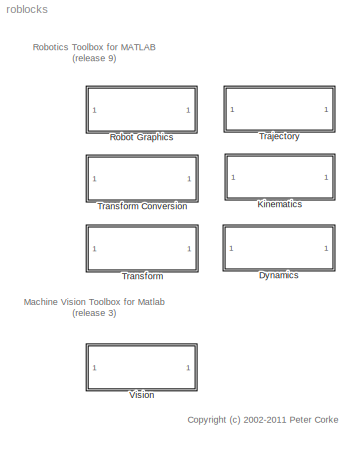
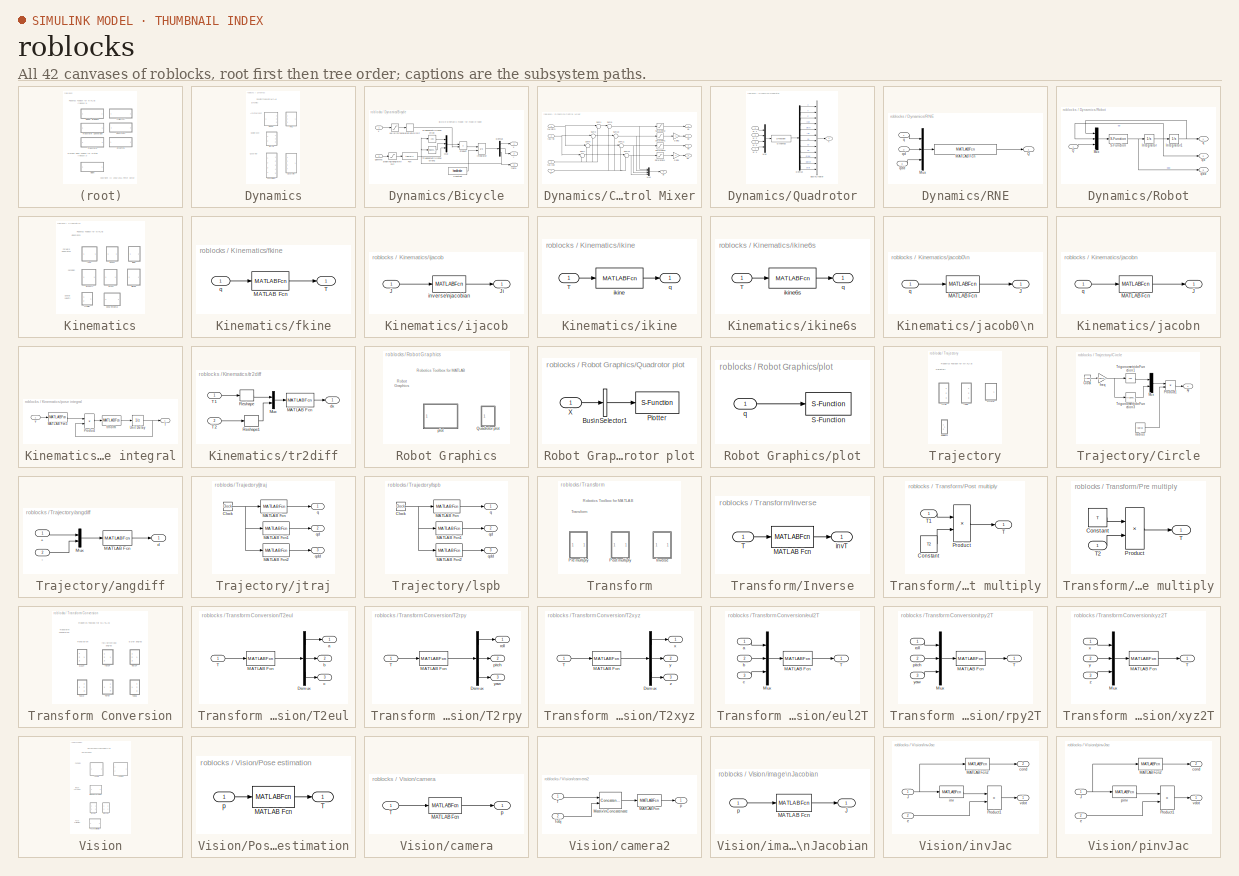
[diagram: thumbnail index - all 42 canvases of the model, root first then tree order]
MODEL roblocks
KIND library
BLOCK [SubSystem] Dynamics
  FunctionWithSeparateData = off
  MaskDisplay = color('darkBlue')\ndisp('Dynamics')
  MaskHideContents = off
  MaskIconFrame = on
  MaskIconOpaque = on
  MaskIconRotate = none
  MaskIconUnits = pixels
  MaskPortRotate = default
  MinAlgLoopOccurrences = off
  Opaque = off
  Ports = []
  PropExecContextOutsideSubsystem = off
  RTWSystemCode = Auto
  RequestExecContextInheritance = off
  SID = 5
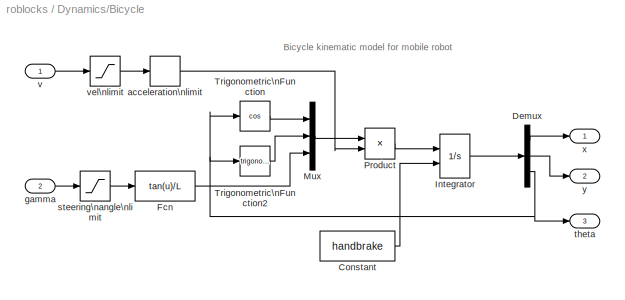
BLOCK [SubSystem] Dynamics/Bicycle
  FunctionWithSeparateData = off
  MaskCallbackString = |||||
  MaskDescription = Kino-dynamic model of bicycle vehicle
  MaskEnableString = on,on,on,on,on,on
  MaskHelp = Kino-dynamic model of bicycle vehicle, also known as Ackermann vehicle\nmodel.\n\n<b>Parameters::</b>\n \nAcceleration (1x1)   Vehicle acceleration limit [m/s2]\nVelocity limit (1x1)  Vehicle speed limit [m/s]\nSteering limits (1x1) Steering angle limit [rad]\nInitial state (1x3) Initial state (x, y, theta)\nHandbrake (1x1) Vehicle cannot move if non-zero\n \n<b>Inputs::</b>\n \nv (1x1) velocity d...<+336ch>
  MaskHideContents = off
  MaskIconFrame = on
  MaskIconOpaque = on
  MaskIconRotate = none
  MaskIconUnits = autoscale
  MaskPortRotate = default
  MaskPromptString = Acceleration|Velocity limit|Steering limits|Wheel base|Initial state (x, y, theta)|Handbrake
  MaskStyleString = edit,edit,edit,edit,edit,edit
  MaskToolTipString = on,on,on,on,on,on
  MaskTunableValueString = on,on,on,on,on,on
  MaskValueString = 1|1|2|0|[0, 0, 0]|0
  MaskVariables = accel=@1;vlim=@2;alim=@3;L=@4;x0=@5;handbrake=@6;
  MaskVisibilityString = on,on,on,on,on,on
  MinAlgLoopOccurrences = off
  Opaque = off
  Ports = [2, 3]
  PropExecContextOutsideSubsystem = off
  RTWSystemCode = Auto
  RequestExecContextInheritance = off
  SID = 51
BLOCK [Constant] Dynamics/Bicycle/Constant
  SID = 51:222
  Value = handbrake
BLOCK [Demux] Dynamics/Bicycle/Demux
  DisplayOption = bar
  Outputs = 3
  Ports = [1, 3]
  SID = 51:4
BLOCK [Fcn] Dynamics/Bicycle/Fcn
  Expr = tan(u)/L
  SID = 51:226
BLOCK [Integrator] Dynamics/Bicycle/Integrator
  ExternalReset = level
  InitialCondition = x0
  Ports = [2, 1]
  SID = 51:227
BLOCK [Mux] Dynamics/Bicycle/Mux
  DisplayOption = bar
  Inputs = 3
  Ports = [3, 1]
  SID = 51:6
BLOCK [Product] Dynamics/Bicycle/Product
  InputSameDT = off
  OutDataTypeStr = Inherit: Inherit via internal rule
  Ports = [2, 1]
  SID = 51:7
  SaturateOnIntegerOverflow = off
BLOCK [Trigonometry] Dynamics/Bicycle/Trigonometric\nFunction
  Operator = cos
  Ports = [1, 1]
  SID = 51:8
BLOCK [Trigonometry] Dynamics/Bicycle/Trigonometric\nFunction2
  Ports = [1, 1]
  SID = 51:9
BLOCK [RateLimiter] Dynamics/Bicycle/acceleration\nlimit
  FallingSlewLimit = -accel
  RisingSlewLimit = accel
  SID = 51:10
  SampleTimeMode = inherited
BLOCK [Inport] Dynamics/Bicycle/gamma
  IconDisplay = Port number
  Port = 2
  SID = 51:3
BLOCK [Saturate] Dynamics/Bicycle/steering\nangle\nlimit
  InputPortMap = u0
  LowerLimit = -alim
  Ports = [1, 1]
  SID = 51:11
  UpperLimit = alim
BLOCK [Outport] Dynamics/Bicycle/theta
  IconDisplay = Port number
  Port = 3
  SID = 51:15
BLOCK [Inport] Dynamics/Bicycle/v
  IconDisplay = Port number
  SID = 51:2
BLOCK [Saturate] Dynamics/Bicycle/vel\nlimit
  InputPortMap = u0
  LowerLimit = -vlim
  Ports = [1, 1]
  SID = 51:12
  UpperLimit = vlim
BLOCK [Outport] Dynamics/Bicycle/x
  IconDisplay = Port number
  SID = 51:13
BLOCK [Outport] Dynamics/Bicycle/y
  IconDisplay = Port number
  Port = 2
  SID = 51:14
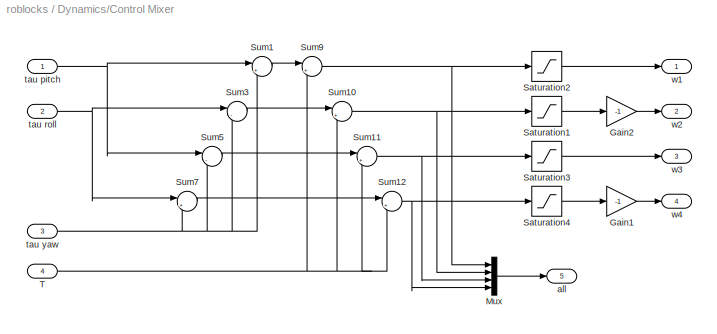
BLOCK [SubSystem] Dynamics/Control Mixer
  FunctionWithSeparateData = off
  MaskDescription = Quadrotor control mixer
  MaskHelp = Determine rotor speeds based on desired torques and thrust.\n \n<b>Inputs::</b>\n \ntau pitch (1x1)  desired pitching torque [Nm]\ntau roll (1x1)   desired rolling torque [Nm]\ntau yaw (1x1)    desired yawing torque [Nm]\nT (1x1)          desired thrust [N]\n \n<b>Outputs::</b>\n \nw1 (1x1) angular velocity of rotor 1 [rad]\nw2 (1x1) angular velocity of rotor 2 [rad]\nw3 (1x1) angular velocity of ...<+197ch>
  MaskHideContents = off
  MaskIconFrame = on
  MaskIconOpaque = on
  MaskIconRotate = none
  MaskIconUnits = autoscale
  MaskPortRotate = default
  MinAlgLoopOccurrences = off
  Opaque = off
  Ports = [4, 5]
  PropExecContextOutsideSubsystem = off
  RTWSystemCode = Auto
  RequestExecContextInheritance = off
  SID = 52
BLOCK [Gain] Dynamics/Control Mixer/Gain1
  Gain = -1
  OutDataTypeStr = Inherit: Inherit via internal rule
  ParamDataTypeStr = Inherit: Inherit via internal rule
  SID = 52:160
  SaturateOnIntegerOverflow = off
BLOCK [Gain] Dynamics/Control Mixer/Gain2
  Gain = -1
  OutDataTypeStr = Inherit: Inherit via internal rule
  ParamDataTypeStr = Inherit: Inherit via internal rule
  SID = 52:161
  SaturateOnIntegerOverflow = off
BLOCK [Mux] Dynamics/Control Mixer/Mux
  DisplayOption = bar
  Ports = [4, 1]
  SID = 52:162
BLOCK [Saturate] Dynamics/Control Mixer/Saturation1
  InputPortMap = u0
  LowerLimit = 700
  Ports = [1, 1]
  SID = 52:163
  UpperLimit = 1000
BLOCK [Saturate] Dynamics/Control Mixer/Saturation2
  InputPortMap = u0
  LowerLimit = 700
  Ports = [1, 1]
  SID = 52:164
  UpperLimit = 1000
BLOCK [Saturate] Dynamics/Control Mixer/Saturation3
  InputPortMap = u0
  LowerLimit = 700
  Ports = [1, 1]
  SID = 52:165
  UpperLimit = 1000
BLOCK [Saturate] Dynamics/Control Mixer/Saturation4
  InputPortMap = u0
  LowerLimit = 700
  Ports = [1, 1]
  SID = 52:166
  UpperLimit = 1000
BLOCK [Sum] Dynamics/Control Mixer/Sum1
  IconShape = round
  Inputs = |++
  Ports = [2, 1]
  SID = 52:167
BLOCK [Sum] Dynamics/Control Mixer/Sum10
  IconShape = round
  Inputs = |++
  Ports = [2, 1]
  SID = 52:168
BLOCK [Sum] Dynamics/Control Mixer/Sum11
  IconShape = round
  Inputs = |++
  Ports = [2, 1]
  SID = 52:169
BLOCK [Sum] Dynamics/Control Mixer/Sum12
  IconShape = round
  Inputs = |++
  Ports = [2, 1]
  SID = 52:170
BLOCK [Sum] Dynamics/Control Mixer/Sum3
  IconShape = round
  Inputs = |--
  Ports = [2, 1]
  SID = 52:171
BLOCK [Sum] Dynamics/Control Mixer/Sum5
  IconShape = round
  Inputs = |-+
  Ports = [2, 1]
  SID = 52:172
BLOCK [Sum] Dynamics/Control Mixer/Sum7
  IconShape = round
  Inputs = |+-
  Ports = [2, 1]
  SID = 52:173
BLOCK [Sum] Dynamics/Control Mixer/Sum9
  IconShape = round
  Inputs = |++
  Ports = [2, 1]
  SID = 52:174
BLOCK [Inport] Dynamics/Control Mixer/T
  IconDisplay = Port number
  Port = 4
  SID = 52:159
BLOCK [Outport] Dynamics/Control Mixer/all
  IconDisplay = Port number
  Port = 5
  SID = 52:179
BLOCK [Inport] Dynamics/Control Mixer/tau pitch
  IconDisplay = Port number
  SID = 52:156
BLOCK [Inport] Dynamics/Control Mixer/tau roll
  IconDisplay = Port number
  Port = 2
  SID = 52:157
BLOCK [Inport] Dynamics/Control Mixer/tau yaw
  IconDisplay = Port number
  Port = 3
  SID = 52:158
BLOCK [Outport] Dynamics/Control Mixer/w1
  IconDisplay = Port number
  SID = 52:175
BLOCK [Outport] Dynamics/Control Mixer/w2
  IconDisplay = Port number
  Port = 2
  SID = 52:176
BLOCK [Outport] Dynamics/Control Mixer/w3
  IconDisplay = Port number
  Port = 3
  SID = 52:177
BLOCK [Outport] Dynamics/Control Mixer/w4
  IconDisplay = Port number
  Port = 4
  SID = 52:178
BLOCK [SubSystem] Dynamics/Quadrotor
  FunctionWithSeparateData = off
  MaskDescription = Quadrotor dynamics
  MaskEnableString = on
  MaskHelp = Integrate spatial velocity to update pose represented as a homogeneous\ntransformation.\n \n<b>Parameters::</b>\n \nq (struct)  A structure containing quadrotor dynamics\n\nThe elements of q are:\n\n J         Flyer rotational inertia matrix (3x3)\n h         Height of rotors above CoG (1x1)\n d         Length of flyer arms (1x1)\n nb        Number of blades per rotor (1x1)\n r         Rotor radiu...<+1440ch>
  MaskHideContents = off
  MaskIconFrame = on
  MaskIconOpaque = on
  MaskIconRotate = none
  MaskIconUnits = autoscale
  MaskPortRotate = default
  MaskPromptString = Quadrotor params
  MaskStyleString = edit
  MaskToolTipString = on
  MaskTunableValueString = on
  MaskValueString = 0
  MaskVariables = quad=@1;
  MaskVisibilityString = on
  MinAlgLoopOccurrences = off
  Opaque = off
  Ports = [4, 1]
  PropExecContextOutsideSubsystem = off
  RTWSystemCode = Auto
  RequestExecContextInheritance = off
  SID = 53
BLOCK [BusCreator] Dynamics/Quadrotor/Bus\nCreator
  DisplayOption = bar
  Inputs = 'X','Y','Z','yaw','pitch','roll','dx','dy','dz','dyaw','dpitch','droll'
  Ports = [12, 1]
  SID = 53:185
BLOCK [Demux] Dynamics/Quadrotor/Demux
  Outputs = 12
  Ports = [1, 12]
  SID = 53:186
BLOCK [S-Function] Dynamics/Quadrotor/Dynamics
  EnableBusSupport = off
  FunctionName = quadrotor_dynamics
  Parameters = quad
  Ports = [1, 1]
  SID = 53:187
BLOCK [Mux] Dynamics/Quadrotor/Mux
  DisplayOption = bar
  Ports = [4, 1]
  SID = 53:188
BLOCK [Outport] Dynamics/Quadrotor/X
  IconDisplay = Port number
  SID = 53:189
BLOCK [Inport] Dynamics/Quadrotor/w 1
  IconDisplay = Port number
  SID = 53:181
BLOCK [Inport] Dynamics/Quadrotor/w 2
  IconDisplay = Port number
  Port = 2
  SID = 53:182
BLOCK [Inport] Dynamics/Quadrotor/w 3
  IconDisplay = Port number
  Port = 3
  SID = 53:183
BLOCK [Inport] Dynamics/Quadrotor/w 4
  IconDisplay = Port number
  Port = 4
  SID = 53:184
BLOCK [SubSystem] Dynamics/RNE
  FunctionWithSeparateData = off
  MaskCallbackString = |
  MaskDescription = Rigid-body inverse dynamics.
  MaskDisplay = port_label('output', 1, 'Q')\nport_label('input', 1, 'q')\nport_label('input', 2, 'qd')\nport_label('input', 3, 'qdd')\ntext(0.9, 0.9,  rname, 'horizontalAlignment', 'right')\n
  MaskEnableString = on,on
  MaskHelp = Given a robot dynamic model and joint angle, rate and acceleration \ndetermine the required joint torque.  \n \n<b>Parameters::</b>\n \nrobot (SerialLink) a dynamic model of an N-link serial link manipulator\ngravity (1x3)  IGNORED Gravitational acceleration in world frame [m/s2]\n \n<b>Inputs::</b>\n \nq (1xN) joint coordinates\nqd (1xN) joint coordinate velocity\nqdd (1xN) joint coordinate accel...<+369ch>
  MaskHideContents = off
  MaskIconFrame = on
  MaskIconOpaque = on
  MaskIconRotate = none
  MaskIconUnits = normalized
  MaskInitialization = if isa(robot, 'SerialLink')\n    n = robot.n\n    rname = robot.name;\nelse\n    n = 0;\n    rname = '';\nend
  MaskPortRotate = default
  MaskPromptString = Robot object|Gravity
  MaskStyleString = edit,edit
  MaskToolTipString = on,on
  MaskTunableValueString = on,on
  MaskValueString = robot|[0 0 9.81]
  MaskVariables = robot=@1;grav=@2;
  MaskVisibilityString = on,on
  MinAlgLoopOccurrences = off
  Opaque = off
  Ports = [3, 1]
  PropExecContextOutsideSubsystem = off
  RTWSystemCode = Auto
  RequestExecContextInheritance = off
  SID = 54
BLOCK [MATLABFcn] Dynamics/RNE/MATLAB Fcn
  MATLABFcn = rne(robot, u(1:n)', u(n+1:2*n)', u(2*n+1:3*n)')
  OutputDimensions = robot.n
  Ports = [1, 1]
  SID = 54:243
BLOCK [Mux] Dynamics/RNE/Mux
  DisplayOption = bar
  Inputs = 3
  Ports = [3, 1]
  SID = 54:244
BLOCK [Outport] Dynamics/RNE/Q
  IconDisplay = Port number
  SID = 54:245
BLOCK [Inport] Dynamics/RNE/q
  IconDisplay = Port number
  SID = 54:240
BLOCK [Inport] Dynamics/RNE/qd
  IconDisplay = Port number
  Port = 2
  SID = 54:241
BLOCK [Inport] Dynamics/RNE/qdd
  IconDisplay = Port number
  Port = 3
  SID = 54:242
BLOCK [SubSystem] Dynamics/Robot
  FunctionWithSeparateData = off
  MaskCallbackString = |
  MaskDescription = Rigid-body dynamic model of robot.
  MaskDisplay = port_label('input', 1, 'Q')\nport_label('output', 1, 'q')\nport_label('output', 2, 'qd')\nport_label('output', 3, 'qdd')\ntext(0.1, 0.9,  rname, 'horizontalAlignment', 'left')\n
  MaskEnableString = on,on
  MaskHelp = Simulates the forward (direct) rigid-body dynamics of the robot described \nby the given robot object.  For given applied joint torque/force it computes\nthe instaneous joint coordinates, velocities and acclerations.\n\n \n<b>Parameters::</b>\n \nrobot (SerialLink) a dynamic model of an N-link serial link manipulator\nq0 (1xN)  Initial joint coordinates\n \n<b>Inputs::</b>\n \nQ (1xN) the generali...<+441ch>
  MaskHideContents = off
  MaskIconFrame = on
  MaskIconOpaque = on
  MaskIconRotate = none
  MaskIconUnits = normalized
  MaskInitialization = if isa(robot, 'SerialLink')\n    rname = robot.name;\n    %fprintf('**robot name is %s\\n', rname);\nelse\n    rname = '';\n    n = 0\nend\n
  MaskPortRotate = default
  MaskPromptString = Robot object|Initial state
  MaskStyleString = edit,edit
  MaskToolTipString = on,on
  MaskTunableValueString = on,on
  MaskValueString = robot|[0 0 0 0 0 0]
  MaskVariables = robot=@1;q0=@2;
  MaskVisibilityString = on,on
  MinAlgLoopOccurrences = off
  Opaque = off
  Ports = [1, 3]
  PropExecContextOutsideSubsystem = off
  RTWSystemCode = Auto
  RequestExecContextInheritance = off
  SID = 55
BLOCK [Integrator] Dynamics/Robot/Integrator
  Ports = [1, 1]
  SID = 55:246
BLOCK [Integrator] Dynamics/Robot/Integrator1
  Ports = [1, 1]
  SID = 55:247
BLOCK [Mux] Dynamics/Robot/Mux
  DisplayOption = bar
  Inputs = 3
  Ports = [3, 1]
  SID = 55:248
BLOCK [Inport] Dynamics/Robot/Q
  IconDisplay = Port number
  SID = 55:225
BLOCK [S-Function] Dynamics/Robot/S-Function
  EnableBusSupport = off
  FunctionName = slaccel
  Parameters = robot
  Ports = [1, 1]
  SID = 55:229
BLOCK [Outport] Dynamics/Robot/q
  IconDisplay = Port number
  SID = 55:230
BLOCK [Outport] Dynamics/Robot/qd
  IconDisplay = Port number
  Port = 2
  SID = 55:231
BLOCK [Outport] Dynamics/Robot/qdd
  IconDisplay = Port number
  Port = 3
  SID = 55:232
BLOCK [SubSystem] Kinematics
  FunctionWithSeparateData = off
  MaskDisplay = color('darkBlue')\ndisp('Kinematics')
  MaskHideContents = off
  MaskIconFrame = on
  MaskIconOpaque = on
  MaskIconRotate = none
  MaskIconUnits = pixels
  MaskPortRotate = default
  MinAlgLoopOccurrences = off
  Opaque = off
  Ports = []
  PropExecContextOutsideSubsystem = off
  RTWSystemCode = Auto
  RequestExecContextInheritance = off
  SID = 249
BLOCK [SubSystem] Kinematics/fkine
  FunctionWithSeparateData = off
  MaskDescription = Robot forward kinematics.
  MaskDisplay = port_label('input', 1, 'q')\nport_label('output', 1, 'T')\nif ~isempty(robot)\n    text(0.5, 0.2, robot.name,  'horizontalAlignment', 'center')\nend\n
  MaskEnableString = on
  MaskHelp = Compute homogeneous transform for robot end-effector given joint coordinates\n\n\n<b>Parameters::</b>\n \nRobot (SerialLink class)  The N-axis robot object for computing forward kinematics.\n \n<b>Inputs::</b>\n \nq (1xN) joint coordinates\n \n<b>Outputs::</b>\n \nT (4x4) the pose of the end effector as a homogeneous transformation\n \n<b>Notes::</b>\n \n- A wrapper for the Toolbox method fkine()....<+2ch>
  MaskHideContents = off
  MaskIconFrame = on
  MaskIconOpaque = on
  MaskIconRotate = none
  MaskIconUnits = normalized
  MaskPortRotate = default
  MaskPromptString = Robot object
  MaskStyleString = edit
  MaskToolTipString = on
  MaskTunableValueString = on
  MaskValueString = robot
  MaskVariables = robot=@1;
  MaskVisibilityString = on
  MinAlgLoopOccurrences = off
  Opaque = off
  Ports = [1, 1]
  PropExecContextOutsideSubsystem = off
  RTWSystemCode = Auto
  RequestExecContextInheritance = off
  SID = 249:22
BLOCK [MATLABFcn] Kinematics/fkine/MATLAB Fcn
  MATLABFcn = fkine(robot,u)
  Output1D = off
  OutputDimensions = [4 4]
  Ports = [1, 1]
  SID = 249:22:70
BLOCK [Outport] Kinematics/fkine/T
  IconDisplay = Port number
  SID = 249:22:71
BLOCK [Inport] Kinematics/fkine/q
  IconDisplay = Port number
  SID = 249:22:69
BLOCK [SubSystem] Kinematics/ijacob
  FunctionWithSeparateData = off
  MaskDescription = Inverse Jacobian\n
  MaskDisplay = text(0.4, 0.7, '\\bf\\fontsize{16}J', 'texmode', 'on', 'verticalAlignment', 'top', 'horizontalAlignment', 'left')\ntext(0.6, 0.65, '\\fontsize{10}-1', 'texmode', 'on','verticalAlignment', 'bottom', 'horizontalAlignment', 'left')\nport_label('input', 1, 'J');\nport_label('output', 1, 'Ji')\n
  MaskHelp = Inverse of Jacobian matrix which maps spatial velocity to joint coordinate\nrates.\n\n\n<b>Inputs::</b>\n \nJ (6x6) the Jacobian matrix\n \n<b>Outputs::</b>\n \nJi (6x6) the inverse Jacobian matrix\n \n<b>Notes::</b>\n \n- A wrapper for the MATLAB function inv().\n- Only valid for square Jacobians (6-axis robots)\n
  MaskHideContents = off
  MaskIconFrame = on
  MaskIconOpaque = on
  MaskIconRotate = none
  MaskIconUnits = normalized
  MaskPortRotate = default
  MinAlgLoopOccurrences = off
  Opaque = off
  Ports = [1, 1]
  PropExecContextOutsideSubsystem = off
  RTWSystemCode = Auto
  RequestExecContextInheritance = off
  SID = 249:23
BLOCK [Inport] Kinematics/ijacob/J
  IconDisplay = Port number
  SID = 249:23:73
BLOCK [Outport] Kinematics/ijacob/Ji
  IconDisplay = Port number
  SID = 249:23:75
BLOCK [MATLABFcn] Kinematics/ijacob/inverse\njacobian
  MATLABFcn = inv(u)
  Output1D = off
  Ports = [1, 1]
  SID = 249:23:74
BLOCK [SubSystem] Kinematics/ikine
  FunctionWithSeparateData = off
  MaskCallbackString = ||
  MaskDescription = Generalized numerical inverse kinematics
  MaskEnableString = on,on,on
  MaskHelp = Compute joint coordinates for robot given end-effector pose.\n\n\n<b>Parameters::</b>\n \nRobot (SerialLink class)  The N-axis robot object for computing forward kinematics.\nInitial q  (1xN)          Initial joint coordinates for solution\nMask vector (1x6)         Mask vector for underactuated manipulators.\n\n<b>Inputs::</b>\n \nT (4x4) the pose of the end effector as a homogeneous transformati...<+123ch>
  MaskHideContents = off
  MaskIconFrame = on
  MaskIconOpaque = on
  MaskIconRotate = none
  MaskIconUnits = autoscale
  MaskPortRotate = default
  MaskPromptString = Robot object|Initial q|Mask vector
  MaskStyleString = edit,edit,edit
  MaskToolTipString = on,on,on
  MaskTunableValueString = on,on,on
  MaskValueString = 0|0|[1 1 1 1 1 1]
  MaskVariables = robot=@1;q0=@2;M=@3;
  MaskVisibilityString = on,on,on
  MinAlgLoopOccurrences = off
  Opaque = off
  Ports = [1, 1]
  PropExecContextOutsideSubsystem = off
  RTWSystemCode = Auto
  RequestExecContextInheritance = off
  SID = 249:250
BLOCK [Inport] Kinematics/ikine/T
  IconDisplay = Port number
  SID = 249:72
BLOCK [MATLABFcn] Kinematics/ikine/ikine
  MATLABFcn = robot.ikine(u, q0, m)
  Ports = [1, 1]
  SID = 249:251
BLOCK [Outport] Kinematics/ikine/q
  IconDisplay = Port number
  SID = 249:252
BLOCK [SubSystem] Kinematics/ikine6s
  FunctionWithSeparateData = off
  MaskCallbackString = |
  MaskDescription = Inverse kinematics for 6-axis spherical robot
  MaskEnableString = on,on
  MaskHelp = Compute joint coordinates for robot given end-effector pose.\n\n\n<b>Parameters::</b>\n \nRobot (SerialLink class)  The N-axis robot object for computing forward kinematics.\nConfiguration             Configuration string comprised of 'lrudnf'\n \n<b>Inputs::</b>\n \nT (4x4) the pose of the end effector as a homogeneous transformation\n\n \n<b>Outputs::</b>\n\nq (1xN) joint coordinates\n \n<b>Note...<+59ch>
  MaskHideContents = off
  MaskIconFrame = on
  MaskIconOpaque = on
  MaskIconRotate = none
  MaskIconUnits = autoscale
  MaskPortRotate = default
  MaskPromptString = Robot object|Configuration string
  MaskStyleString = edit,edit
  MaskToolTipString = on,on
  MaskTunableValueString = on,on
  MaskValueString = p560|'luf'
  MaskVariables = robot=@1;conf=@2;
  MaskVisibilityString = on,on
  MinAlgLoopOccurrences = off
  Opaque = off
  Ports = [1, 1]
  PropExecContextOutsideSubsystem = off
  RTWSystemCode = Auto
  RequestExecContextInheritance = off
  SID = 249:66
BLOCK [Inport] Kinematics/ikine6s/T
  IconDisplay = Port number
  SID = 249:67
BLOCK [MATLABFcn] Kinematics/ikine6s/ikine6s
  MATLABFcn = robot.ikine6s(u,conf)
  Ports = [1, 1]
  SID = 249:65
BLOCK [Outport] Kinematics/ikine6s/q
  IconDisplay = Port number
  SID = 249:68
BLOCK [SubSystem] Kinematics/jacob0\n
  FunctionWithSeparateData = off
  MaskDescription = Robot Jacobian in world coordinates
  MaskDisplay = text(0.4, 0.7, '\\bf\\fontsize{16}J', 'texmode', 'on', 'verticalAlignment', 'top', 'horizontalAlignment', 'left')\ntext(0.45, 0.65, '\\fontsize{10}0', 'texmode', 'on','verticalAlignment', 'bottom', 'horizontalAlignment', 'right')\nif ~isempty(robot)\n    text(0.5, 0.2, robot.name,  'horizontalAlignment', 'center')\nend\nport_label('input', 1, 'q')\nport_label('output', 1, 'J')
  MaskEnableString = on
  MaskHelp = Jacobian matrix relating joint coordinate rates to end-effector spatial\nvelocity expressed in the world frame.\n\n<b>Parameters::</b>\n \nRobot (SerialLink class)  The N-axis robot object for which the Jacobian is\n                          computed.\n \n<b>Inputs::</b>\n \nq (1xN) joint coordinates\n \n<b>Outputs::</b>\n \nJ (6xN) the Jacobian matrix\n \n<b>Notes::</b>\n \n- A wrapper for the To...<+24ch>
  MaskHideContents = off
  MaskIconFrame = on
  MaskIconOpaque = on
  MaskIconRotate = none
  MaskIconUnits = normalized
  MaskInitialization = n=robot.n;\n
  MaskPortRotate = default
  MaskPromptString = Robot object
  MaskStyleString = edit
  MaskToolTipString = on
  MaskTunableValueString = on
  MaskValueString = robot
  MaskVariables = robot=@1;
  MaskVisibilityString = on
  MinAlgLoopOccurrences = off
  Opaque = off
  Ports = [1, 1]
  PropExecContextOutsideSubsystem = off
  RTWSystemCode = Auto
  RequestExecContextInheritance = off
  SID = 249:24
BLOCK [Outport] Kinematics/jacob0\n/J
  IconDisplay = Port number
  SID = 249:24:79
BLOCK [MATLABFcn] Kinematics/jacob0\n/MATLAB Fcn
  MATLABFcn = jacob0(robot,u)
  Output1D = off
  OutputDimensions = [6 n]
  Ports = [1, 1]
  SID = 249:24:78
BLOCK [Inport] Kinematics/jacob0\n/q
  IconDisplay = Port number
  SID = 249:24:77
BLOCK [SubSystem] Kinematics/jacobn
  FunctionWithSeparateData = off
  MaskDescription = Robot Jacobian in end-effector coordinates
  MaskDisplay = text(0.4, 0.7, '\\bf\\fontsize{16}J', 'texmode', 'on', 'verticalAlignment', 'top', 'horizontalAlignment', 'left')\ntext(0.45, 0.65, '\\fontsize{10}N', 'texmode', 'on','verticalAlignment', 'bottom', 'horizontalAlignment', 'right')\nif ~isempty(robot)\n    text(0.5, 0.2, robot.name,  'horizontalAlignment', 'center')\nend\nport_label('input', 1, 'q')\nport_label('output', 1, 'J')
  MaskEnableString = on
  MaskHelp = Jacobian matrix relating joint coordinate rates to end-effector spatial\nvelocity expressed in the end-effector frame.\n\n<b>Parameters::</b>\n \nRobot (SerialLink class)  The N-axis robot object for which the Jacobian is\n                          computed.\n \n<b>Inputs::</b>\n \nq (1xN) joint coordinates\n \n<b>Outputs::</b>\n \nJ (6xN) the Jacobian matrix\n \n<b>Notes::</b>\n \n- A wrapper for...<+31ch>
  MaskHideContents = off
  MaskIconFrame = on
  MaskIconOpaque = on
  MaskIconRotate = none
  MaskIconUnits = normalized
  MaskInitialization = n=robot.n;
  MaskPortRotate = default
  MaskPromptString = Robot object
  MaskStyleString = edit
  MaskToolTipString = on
  MaskTunableValueString = on
  MaskValueString = robot
  MaskVariables = robot=@1;
  MaskVisibilityString = on
  MinAlgLoopOccurrences = off
  Opaque = off
  Ports = [1, 1]
  PropExecContextOutsideSubsystem = off
  RTWSystemCode = Auto
  RequestExecContextInheritance = off
  SID = 249:25
BLOCK [Outport] Kinematics/jacobn/J
  IconDisplay = Port number
  SID = 249:25:83
BLOCK [MATLABFcn] Kinematics/jacobn/MATLAB Fcn
  MATLABFcn = jacobn(robot,u)
  Output1D = off
  OutputDimensions = [6 n]
  Ports = [1, 1]
  SID = 249:25:82
BLOCK [Inport] Kinematics/jacobn/q
  IconDisplay = Port number
  SID = 249:25:81
BLOCK [SubSystem] Kinematics/pose integral
  FunctionWithSeparateData = off
  MaskCallbackString = |
  MaskDescription = Integrate spatial velocity
  MaskEnableString = on,on
  MaskHelp = Integrate spatial velocity to update pose represented as a homogeneous\ntransformation.\n\n<b>Parameters::</b>\n\nT0 (4x4)  The initial pose\ndt (1x1)  The sample interval [s]\n\n<b>Inputs::</b>\n\nv (1x6) spatial velocity (xd yd zd wx wy wz)\n\n<b>Outputs::</b>\n\nT (4x4) the integrated pose as a homogeneous transformation\n\n<b>Notes::</b>\n\n- Contains a unit delay of dt\n- The transform is kep...<+30ch>
  MaskHideContents = off
  MaskIconFrame = on
  MaskIconOpaque = on
  MaskIconRotate = none
  MaskIconUnits = autoscale
  MaskPortRotate = default
  MaskPromptString = Initial pose (hom transform)|Sample interval (s)
  MaskStyleString = edit,edit
  MaskToolTipString = on,on
  MaskTunableValueString = on,on
  MaskValueString = transl(1,1,-3)*trotx(0.2)|0.02
  MaskVariables = T0=@1;dt=@2;
  MaskVisibilityString = on,on
  MinAlgLoopOccurrences = off
  Opaque = off
  Ports = [1, 1]
  PropExecContextOutsideSubsystem = off
  RTWSystemCode = Auto
  RequestExecContextInheritance = off
  SID = 249:58
BLOCK [MATLABFcn] Kinematics/pose integral/MATLAB Fcn3
  MATLABFcn = delta2tr(u)
  Output1D = off
  Ports = [1, 1]
  SID = 249:60
BLOCK [Product] Kinematics/pose integral/Product
  InputSameDT = off
  Multiplication = Matrix(*)
  OutDataTypeStr = Inherit: Inherit via internal rule
  Ports = [2, 1]
  SID = 249:61
  SaturateOnIntegerOverflow = off
BLOCK [Outport] Kinematics/pose integral/T
  IconDisplay = Port number
  SID = 249:64
BLOCK [UnitDelay] Kinematics/pose integral/Unit Delay
  SID = 249:62
  SampleTime = dt
  X0 = T0
BLOCK [MATLABFcn] Kinematics/pose integral/trnorm
  MATLABFcn = trnorm(u)
  Output1D = off
  Ports = [1, 1]
  SID = 249:63
BLOCK [Inport] Kinematics/pose integral/v
  IconDisplay = Port number
  SID = 249:59
BLOCK [SubSystem] Kinematics/tr2diff
  FunctionWithSeparateData = off
  MaskDescription = Compute differential motion
  MaskDisplay = port_label('input', 1, 'T1')\nport_label('input', 2, 'T2')\nport_label('output', 1, 'dx')\n\n
  MaskEnableString = on
  MaskHelp = Compute the differential motion (as a 6-vector) between two poses given as\nhomogeneous transformations.\n \n<b>Inputs::</b>\n \nT1 (4x4) initial pose as a homogeneous transformation \nT2 (4x4) final pose as a homogeneous transformation \n \n<b>Outputs::</b>\n \ndx (1x6) the differential motion (dx dy dz dwx dwy dwz)\n \n<b>Notes::</b>\n\n- Only valid for infinitessimal displacements.\n- dx is the...<+92ch>
  MaskHideContents = off
  MaskIconFrame = on
  MaskIconOpaque = on
  MaskIconRotate = none
  MaskIconUnits = normalized
  MaskPortRotate = default
  MaskPromptString = Robot object
  MaskStyleString = edit
  MaskToolTipString = on
  MaskTunableValueString = on
  MaskValueString = robot
  MaskVariables = robot=@1;
  MaskVisibilityString = on
  MinAlgLoopOccurrences = off
  Opaque = off
  Ports = [2, 1]
  PropExecContextOutsideSubsystem = off
  RTWSystemCode = Auto
  RequestExecContextInheritance = off
  SID = 249:26
BLOCK [MATLABFcn] Kinematics/tr2diff/MATLAB Fcn
  MATLABFcn = tr2delta(reshape(u(1:16),4,4), reshape(u(17:32),4,4))
  OutputDimensions = 6
  Ports = [1, 1]
  SID = 249:26:113
BLOCK [Mux] Kinematics/tr2diff/Mux
  DisplayOption = bar
  Inputs = 2
  Ports = [2, 1]
  SID = 249:26:114
BLOCK [Reshape] Kinematics/tr2diff/Reshape
  Ports = [1, 1]
  SID = 249:26:115
BLOCK [Reshape] Kinematics/tr2diff/Reshape1
  Ports = [1, 1]
  SID = 249:26:116
BLOCK [Inport] Kinematics/tr2diff/T1
  IconDisplay = Port number
  SID = 249:26:111
BLOCK [Inport] Kinematics/tr2diff/T2
  IconDisplay = Port number
  Port = 2
  SID = 249:26:112
BLOCK [Outport] Kinematics/tr2diff/dx
  IconDisplay = Port number
  SID = 249:26:117
BLOCK [SubSystem] Robot Graphics
  FunctionWithSeparateData = off
  MaskDisplay = color('darkBlue')\ndisp('Robot Graphics')
  MaskHideContents = off
  MaskIconFrame = on
  MaskIconOpaque = on
  MaskIconRotate = none
  MaskIconUnits = pixels
  MaskPortRotate = default
  MinAlgLoopOccurrences = off
  Opaque = off
  Ports = []
  PropExecContextOutsideSubsystem = off
  RTWSystemCode = Auto
  RequestExecContextInheritance = off
  SID = 16
BLOCK [SubSystem] Robot Graphics/Quadrotor plot
  FunctionWithSeparateData = off
  MaskDescription = Animate quadrotor.
  MaskEnableString = on
  MaskHelp = This block graphically displays a quadrotor (flying robot).\n\nA new figure is created and A graphical model of a quadrotor is animated \nto a pose specified by the state vector input to the block.  \n\nThe state vector is [x y z roll pitch yaw] in world coordinates and the\nangles are in radians.\n\nNotes:\n- The dimensions of the model are currently fixed in the code and cannot\n  be set via a p...<+9ch>
  MaskHideContents = off
  MaskIconFrame = on
  MaskIconOpaque = on
  MaskIconRotate = none
  MaskIconUnits = autoscale
  MaskPortRotate = default
  MaskPromptString = State vector
  MaskStyleString = edit
  MaskToolTipString = on
  MaskTunableValueString = on
  MaskValueString = 0
  MaskVariables = x=@1;
  MaskVisibilityString = on
  MinAlgLoopOccurrences = off
  Opaque = off
  Ports = [1]
  PropExecContextOutsideSubsystem = off
  RTWSystemCode = Auto
  RequestExecContextInheritance = off
  SID = 16:18
BLOCK [BusSelector] Robot Graphics/Quadrotor plot/Bus\nSelector1
  OutputAsBus = on
  OutputSignals = X,Y,Z,yaw,pitch,roll
  Ports = [1, 1]
  SID = 16:18:192
BLOCK [S-Function] Robot Graphics/Quadrotor plot/Plotter
  EnableBusSupport = off
  FunctionName = quadrotor_plot
  Parameters = [2,10], 1, 1
  Ports = [1]
  SID = 16:18:193
BLOCK [Inport] Robot Graphics/Quadrotor plot/X
  IconDisplay = Port number
  SID = 16:18:191
BLOCK [SubSystem] Robot Graphics/plot
  FunctionWithSeparateData = off
  MaskCallbackString = \n||
  MaskDescription = Graphical robot display.
  MaskDisplay = port_label('input', 1, 'q')\nif ~isempty(robot)\n    text(0.5, 0.2, robot.name,  'horizontalAlignment', 'center')\nend\n
  MaskEnableString = on,on,on
  MaskHelp = This block graphically displays the passed SerialLink class object.\n\nA new figure is created and the robot is animated (using SerialLink.plot)\nto a pose specified by the joint coordinate vector input to the block whose\nwidth must match the number of robot joints.\n\nIf the Hold checkbox is ticked then a \"hold\" command is issued at initialization\ntime allowing multiple robots to be displayed...<+17ch>
  MaskHideContents = off
  MaskIconFrame = on
  MaskIconOpaque = on
  MaskIconRotate = none
  MaskIconUnits = normalized
  MaskPortRotate = default
  MaskPromptString = Robot object|Update rate (fps)|Hold
  MaskSelfModifiable = on
  MaskStyleString = edit,edit,checkbox
  MaskToolTipString = on,on,on
  MaskTunableValueString = off,on,on
  MaskValueString = robot|25|on
  MaskVariables = robot=@1;fps=@2;holdplot=@3;
  MaskVisibilityString = on,on,on
  MinAlgLoopOccurrences = off
  Opaque = off
  Ports = [1]
  PropExecContextOutsideSubsystem = off
  RTWSystemCode = Auto
  RequestExecContextInheritance = off
  SID = 16:17
BLOCK [S-Function] Robot Graphics/plot/S-Function
  EnableBusSupport = off
  FunctionName = slplotbot
  Parameters = robot,fps,holdplot
  Ports = [1]
  SID = 16:17:95
BLOCK [Inport] Robot Graphics/plot/q
  IconDisplay = Port number
  SID = 16:17:94
BLOCK [SubSystem] Trajectory
  FunctionWithSeparateData = off
  MaskDisplay = color('darkBlue')\ndisp('Trajectory')
  MaskHideContents = off
  MaskIconFrame = on
  MaskIconOpaque = on
  MaskIconRotate = none
  MaskIconUnits = autoscale
  MaskPortRotate = default
  MinAlgLoopOccurrences = off
  Opaque = off
  Ports = []
  PropExecContextOutsideSubsystem = off
  RTWSystemCode = Auto
  RequestExecContextInheritance = off
  SID = 257
BLOCK [SubSystem] Trajectory/Circle
  FunctionWithSeparateData = off
  MaskCallbackString = |
  MaskDescription = Generate circular trajectory
  MaskEnableString = on,on
  MaskHelp = Generate circular trajectory in the xy-plane and centred at the origin.\n\n<b>Parameters::</b>\n\nradius   The radius of the circle [m]\nfreq     The frequency of motion [rev/s]\n\n<b>Output::</b>\n\nxy (1x2) a vector of xy-coordinates at the current simulation time step.\n\n<b>Notes::</b>\n- Motion is at constant velocity around the circle, there is an infinite\n  initial acceleration.\n- The mot...<+39ch>
  MaskHideContents = off
  MaskIconFrame = on
  MaskIconOpaque = on
  MaskIconRotate = none
  MaskIconUnits = autoscale
  MaskPortRotate = default
  MaskPromptString = Radius|Frequency (rev/s)
  MaskStyleString = edit,edit
  MaskToolTipString = on,on
  MaskTunableValueString = on,on
  MaskValueString = 1|0.2
  MaskVariables = radius=@1;freq=@2;
  MaskVisibilityString = on,on
  MinAlgLoopOccurrences = off
  Opaque = off
  Ports = [0, 1]
  PropExecContextOutsideSubsystem = off
  RTWSystemCode = Auto
  RequestExecContextInheritance = off
  SID = 56
BLOCK [Clock] Trajectory/Circle/Clock
  SID = 56:258
BLOCK [Mux] Trajectory/Circle/Mux
  DisplayOption = bar
  Inputs = 2
  Ports = [2, 1]
  SID = 56:259
BLOCK [Product] Trajectory/Circle/Product1
  InputSameDT = off
  OutDataTypeStr = Inherit: Inherit via internal rule
  Ports = [2, 1]
  SID = 56:260
  SaturateOnIntegerOverflow = off
BLOCK [Trigonometry] Trajectory/Circle/Trigonometric\nFunction1
  Operator = cos
  Ports = [1, 1]
  SID = 56:261
BLOCK [Trigonometry] Trajectory/Circle/Trigonometric\nFunction3
  Ports = [1, 1]
  SID = 56:21
BLOCK [Gain] Trajectory/Circle/freq
  Gain = freq*2*pi
  OutDataTypeStr = Inherit: Inherit via internal rule
  ParamDataTypeStr = Inherit: Inherit via internal rule
  SID = 56:262
  SaturateOnIntegerOverflow = off
BLOCK [Constant] Trajectory/Circle/radius
  SID = 56:263
  Value = radius
BLOCK [Outport] Trajectory/Circle/xy
  IconDisplay = Port number
  SID = 56:264
BLOCK [SubSystem] Trajectory/angdiff
  FunctionWithSeparateData = off
  MaskDescription = Difference of angles
  MaskHelp = A difference block for angles and the result is guaranteed to be in the\ninterval [-pi +pi).\n\n<b>Notes::</b>\n- Is a wrapper for the Toolbox function angdiff.
  MaskHideContents = off
  MaskIconFrame = on
  MaskIconOpaque = on
  MaskIconRotate = none
  MaskIconUnits = autoscale
  MaskPortRotate = default
  MinAlgLoopOccurrences = off
  Opaque = off
  Ports = [2, 1]
  PropExecContextOutsideSubsystem = off
  RTWSystemCode = Auto
  RequestExecContextInheritance = off
  SID = 57
BLOCK [Inport] Trajectory/angdiff/+
  IconDisplay = Port number
  SID = 57:265
BLOCK [Inport] Trajectory/angdiff/-
  IconDisplay = Port number
  Port = 2
  SID = 57:266
BLOCK [MATLABFcn] Trajectory/angdiff/MATLAB Fcn
  MATLABFcn = angdiff(u(1), u(2))
  Ports = [1, 1]
  SID = 57:267
BLOCK [Mux] Trajectory/angdiff/Mux
  DisplayOption = bar
  Inputs = 2
  Ports = [2, 1]
  SID = 57:268
BLOCK [Outport] Trajectory/angdiff/d
  IconDisplay = Port number
  SID = 57:269
BLOCK [SubSystem] Trajectory/jtraj
  FunctionWithSeparateData = off
  MaskCallbackString = |||
  MaskDescription = Joint interpolated trajectory.
  MaskDisplay = port_label('output', 1, 'q')\nport_label('output', 2, 'qd')\nport_label('output', 3, 'qdd')
  MaskEnableString = on,on,on,on
  MaskHelp = Generate quintic polynomial to move from initial to final joint angles as specified.  Initial and final velocity are assumed to be zero.\n\n<b>Parameters::</b>\n\nq0 (1xN) initial joint coordinates\nqf (1xN) final joint coordinates\ntmax (1x1) the time for the trajectory to complete\n\nInitial and final velocity are assumed to be zero.\n\n<b>Outputs::</b>\n\nq (1xN) vector of joint coordinates at ...<+395ch>
  MaskHideContents = off
  MaskIconFrame = on
  MaskIconOpaque = on
  MaskIconRotate = none
  MaskIconUnits = normalized
  MaskInitialization = n = length(q0);\nif length(q0) ~= length(qf) ,\n error('q0 and qf must be same length')\nend\nt=[0:100]'/100*tmax;\n[q,qd,qdd] = jtraj(q0, qf, t);
  MaskPortRotate = default
  MaskPromptString = q0|qf|tmax (s)|ts (s)
  MaskStyleString = edit,edit,edit,edit
  MaskToolTipString = on,on,on,on
  MaskTunableValueString = on,on,on,on
  MaskValueString = [0 0 0 0 0 0]|[pi/4 pi/2 -pi/2 0 0 0]|10|0.02
  MaskVariables = q0=@1;qf=@2;tmax=@3;ts=@4;
  MaskVisibilityString = on,on,on,on
  MinAlgLoopOccurrences = off
  Opaque = off
  Ports = [0, 3]
  PropExecContextOutsideSubsystem = off
  RTWSystemCode = Auto
  RequestExecContextInheritance = off
  SID = 270
BLOCK [Clock] Trajectory/jtraj/Clock
  SID = 270:85
BLOCK [MATLABFcn] Trajectory/jtraj/MATLAB Fcn
  MATLABFcn = interp1(t,q,u)
  OutputDimensions = n
  Ports = [1, 1]
  SID = 270:86
  SampleTime = ts
BLOCK [MATLABFcn] Trajectory/jtraj/MATLAB Fcn1
  MATLABFcn = interp1(t,qd,u)
  OutputDimensions = n
  Ports = [1, 1]
  SID = 270:87
  SampleTime = ts
BLOCK [MATLABFcn] Trajectory/jtraj/MATLAB Fcn2
  MATLABFcn = interp1(t,qdd,u)
  OutputDimensions = n
  Ports = [1, 1]
  SID = 270:88
  SampleTime = ts
BLOCK [Outport] Trajectory/jtraj/q
  IconDisplay = Port number
  SID = 270:89
BLOCK [Outport] Trajectory/jtraj/qd
  IconDisplay = Port number
  Port = 2
  SID = 270:90
BLOCK [Outport] Trajectory/jtraj/qdd
  IconDisplay = Port number
  Port = 3
  SID = 270:91
BLOCK [SubSystem] Trajectory/lspb
  FunctionWithSeparateData = off
  MaskCallbackString = ||
  MaskDescription = Scalar trajectory.
  MaskEnableString = on,on,on
  MaskHelp = Generate linear segment with polynomial blend to move from initial to final\n joint angles as specified.\n\n<b>Parameters::</b>\n\nq0 (1x1) initial joint coordinate\nqf (1x1) final joint coordinate\ntmax (1x1) the time for the trajectory to complete\n\nInitial and final velocity are assumed to be zero.\n\n<b>Outputs::</b>\n\nq (1x1) joint coordinates at current simulation time\nqd (1x1) joint coor...<+323ch>
  MaskHideContents = off
  MaskIconFrame = on
  MaskIconOpaque = on
  MaskIconRotate = none
  MaskIconUnits = autoscale
  MaskInitialization = n = length(q0);\nif length(q0) ~= length(qf) ,\n error('q0 and qf must be same length')\nend\nt=[0:1000]'/1000*tmax;\n[q,qd,qdd] = lspb(q0, qf, t);
  MaskPortRotate = default
  MaskPromptString = q0|qf|tmax
  MaskStyleString = edit,edit,edit
  MaskToolTipString = on,on,on
  MaskTunableValueString = on,on,on
  MaskValueString = 0|0|0
  MaskVariables = q0=@1;qf=@2;tmax=@3;
  MaskVisibilityString = on,on,on
  MinAlgLoopOccurrences = off
  Opaque = off
  Ports = [0, 3]
  PropExecContextOutsideSubsystem = off
  RTWSystemCode = Auto
  RequestExecContextInheritance = off
  SID = 271
BLOCK [Clock] Trajectory/lspb/Clock
  SID = 271:585
BLOCK [MATLABFcn] Trajectory/lspb/MATLAB Fcn
  MATLABFcn = interp1(t,q,u)
  OutputDimensions = n
  Ports = [1, 1]
  SID = 271:586
BLOCK [MATLABFcn] Trajectory/lspb/MATLAB Fcn1
  MATLABFcn = interp1(t,qd,u)
  OutputDimensions = n
  Ports = [1, 1]
  SID = 271:587
BLOCK [MATLABFcn] Trajectory/lspb/MATLAB Fcn2
  MATLABFcn = interp1(t,qdd,u)
  OutputDimensions = n
  Ports = [1, 1]
  SID = 271:588
BLOCK [Outport] Trajectory/lspb/q
  IconDisplay = Port number
  SID = 271:593
BLOCK [Outport] Trajectory/lspb/qd
  IconDisplay = Port number
  Port = 2
  SID = 271:594
BLOCK [Outport] Trajectory/lspb/qdd
  IconDisplay = Port number
  Port = 3
  SID = 271:595
BLOCK [SubSystem] Transform
  FunctionWithSeparateData = off
  MaskDisplay = color('darkBlue')\ndisp('Transform')
  MaskHideContents = off
  MaskIconFrame = on
  MaskIconOpaque = on
  MaskIconRotate = none
  MaskIconUnits = autoscale
  MaskPortRotate = default
  MinAlgLoopOccurrences = off
  Opaque = off
  Ports = []
  PropExecContextOutsideSubsystem = off
  RTWSystemCode = Auto
  RequestExecContextInheritance = off
  SID = 35
BLOCK [SubSystem] Transform Conversion
  FunctionWithSeparateData = off
  MaskDisplay = color('darkBlue')\ndisp('Transform Conversion')
  MaskHideContents = off
  MaskIconFrame = on
  MaskIconOpaque = on
  MaskIconRotate = none
  MaskIconUnits = autoscale
  MaskPortRotate = default
  MinAlgLoopOccurrences = off
  Opaque = off
  Ports = []
  PropExecContextOutsideSubsystem = off
  RTWSystemCode = Auto
  RequestExecContextInheritance = off
  SID = 599
BLOCK [SubSystem] Transform Conversion/T2eul
  FunctionWithSeparateData = off
  MaskDescription = Convert transform to Euler angles.
  MaskHelp = Convert homogeneous transformation to Euler angles.\n \n \n<b>Inputs::</b>\n \nT (4x4) the attitude as a homogeneous transformation\n\n<b>Outputs::</b>\n\nphi (1x1) first Euler angle [rad]\ntheta (1x1) second Euler angle [rad]\npsi (1x1) third Euler angle [rad]\n \n<b>Notes::</b>\n \n- Axis rotation order is z-y-z (aerospace convention).\n- Wrapper for the Toolbox function tr2eul().\n\n
  MaskHideContents = off
  MaskIconFrame = on
  MaskIconOpaque = on
  MaskIconRotate = none
  MaskIconUnits = normalized
  MaskPortRotate = default
  MinAlgLoopOccurrences = off
  Opaque = off
  Ports = [1, 3]
  PropExecContextOutsideSubsystem = off
  RTWSystemCode = Auto
  RequestExecContextInheritance = off
  SID = 600
BLOCK [Demux] Transform Conversion/T2eul/Demux
  Outputs = 3
  Ports = [1, 3]
  SID = 600:36
BLOCK [MATLABFcn] Transform Conversion/T2eul/MATLAB Fcn
  MATLABFcn = tr2eul(u)
  OutputDimensions = 3
  Ports = [1, 1]
  SID = 600:37
BLOCK [Inport] Transform Conversion/T2eul/T
  IconDisplay = Port number
  SID = 600:601
BLOCK [Outport] Transform Conversion/T2eul/a
  IconDisplay = Port number
  SID = 600:38
BLOCK [Outport] Transform Conversion/T2eul/b
  IconDisplay = Port number
  Port = 2
  SID = 600:39
BLOCK [Outport] Transform Conversion/T2eul/c
  IconDisplay = Port number
  Port = 3
  SID = 600:40
BLOCK [SubSystem] Transform Conversion/T2rpy
  FunctionWithSeparateData = off
  MaskDescription = Convert transform to roll/pitch/yaw angles.
  MaskHelp = Convert homogeneous transformation to roll/pitch/yaw angles.\n \n \n<b>Inputs::</b>\n\nT (4x4) the attitude as a homogeneous transformation\n\n<b>Outputs::</b>\n \nroll (1x1) roll angle [rad]\npitch (1x1) pitch angle [rad]\nyaw (1x1) yaw angle [rad]\n \n<b>Notes::</b>\n \n- Axis rotation order is x-y-z (aerospace convention).\n- Wrapper for the Toolbox function tr2rpy().\n\n
  MaskHideContents = off
  MaskIconFrame = on
  MaskIconOpaque = on
  MaskIconRotate = none
  MaskIconUnits = normalized
  MaskPortRotate = default
  MinAlgLoopOccurrences = off
  Opaque = off
  Ports = [1, 3]
  PropExecContextOutsideSubsystem = off
  RTWSystemCode = Auto
  RequestExecContextInheritance = off
  SID = 602
BLOCK [Demux] Transform Conversion/T2rpy/Demux
  Outputs = 3
  Ports = [1, 3]
  SID = 602:43
BLOCK [MATLABFcn] Transform Conversion/T2rpy/MATLAB Fcn
  MATLABFcn = tr2rpy(u)
  OutputDimensions = 3
  Ports = [1, 1]
  SID = 602:44
BLOCK [Inport] Transform Conversion/T2rpy/T
  IconDisplay = Port number
  SID = 602:42
BLOCK [Outport] Transform Conversion/T2rpy/pitch
  IconDisplay = Port number
  Port = 2
  SID = 602:46
BLOCK [Outport] Transform Conversion/T2rpy/roll
  IconDisplay = Port number
  SID = 602:45
BLOCK [Outport] Transform Conversion/T2rpy/yaw
  IconDisplay = Port number
  Port = 3
  SID = 602:47
BLOCK [SubSystem] Transform Conversion/T2xyz
  FunctionWithSeparateData = off
  MaskDescription = Convert transform to xyz scalars
  MaskHelp = Convert homogeneous transformation to position scalars.\n\n\n<b>Inputs::</b>\n\nT (4x4) a translation represented as a homogeneous transformation\n\n<b>Outputs::</b>\n\nx (1x1) x-coordinate\ny (1x1) y-coordinate\nz (1x1) z-coordinate\n\n<b>Notes::</b>\n\n- A wrapper for the Toolbox function transl().\n
  MaskHideContents = off
  MaskIconFrame = on
  MaskIconOpaque = on
  MaskIconRotate = none
  MaskIconUnits = normalized
  MaskPortRotate = default
  MinAlgLoopOccurrences = off
  Opaque = off
  Ports = [1, 3]
  PropExecContextOutsideSubsystem = off
  RTWSystemCode = Auto
  RequestExecContextInheritance = off
  SID = 603
BLOCK [Demux] Transform Conversion/T2xyz/Demux
  Outputs = 3
  Ports = [1, 3]
  SID = 603:50
BLOCK [MATLABFcn] Transform Conversion/T2xyz/MATLAB Fcn
  MATLABFcn = transl(u)
  OutputDimensions = 3
  Ports = [1, 1]
  SID = 603:604
BLOCK [Inport] Transform Conversion/T2xyz/T
  IconDisplay = Port number
  SID = 603:49
BLOCK [Outport] Transform Conversion/T2xyz/x
  IconDisplay = Port number
  SID = 603:605
BLOCK [Outport] Transform Conversion/T2xyz/y
  IconDisplay = Port number
  Port = 2
  SID = 603:606
BLOCK [Outport] Transform Conversion/T2xyz/z
  IconDisplay = Port number
  Port = 3
  SID = 603:607
BLOCK [SubSystem] Transform Conversion/eul2T
  FunctionWithSeparateData = off
  MaskDescription = Convert Euler angles to transform.
  MaskHelp = Convert Euler angles to homogeneous transformation.\n \n \n<b>Inputs::</b>\n \nphi (1x1) first Euler angle [rad]\ntheta (1x1) second Euler angle [rad]\npsi (1x1) third Euler angle [rad]\n\n\n<b>Outputs::</b>\n \nT (4x4) the attitude as a homogeneous transformation\n \n<b>Notes::</b>\n \n- Axis rotation order is z-y-z (aerospace convention).\n- Wrapper for the Toolbox function eul2tr().\n\n
  MaskHideContents = off
  MaskIconFrame = on
  MaskIconOpaque = on
  MaskIconRotate = none
  MaskIconUnits = normalized
  MaskPortRotate = default
  MinAlgLoopOccurrences = off
  Opaque = off
  Ports = [3, 1]
  PropExecContextOutsideSubsystem = off
  RTWSystemCode = Auto
  RequestExecContextInheritance = off
  SID = 608
BLOCK [MATLABFcn] Transform Conversion/eul2T/MATLAB Fcn
  MATLABFcn = eul2tr(u)
  Output1D = off
  OutputDimensions = [4 4]
  Ports = [1, 1]
  SID = 608:612
BLOCK [Mux] Transform Conversion/eul2T/Mux
  DisplayOption = bar
  Inputs = 3
  Ports = [3, 1]
  SID = 608:613
BLOCK [Outport] Transform Conversion/eul2T/T
  IconDisplay = Port number
  SID = 608:614
BLOCK [Inport] Transform Conversion/eul2T/a
  IconDisplay = Port number
  SID = 608:609
BLOCK [Inport] Transform Conversion/eul2T/b
  IconDisplay = Port number
  Port = 2
  SID = 608:610
BLOCK [Inport] Transform Conversion/eul2T/c
  IconDisplay = Port number
  Port = 3
  SID = 608:611
BLOCK [SubSystem] Transform Conversion/rpy2T
  FunctionWithSeparateData = off
  MaskDescription = Convert roll/pitch/yaw angles to transform.
  MaskHelp = Convert roll/pitch/yaw angles to homogeneous transformation.\n \n \n<b>Inputs::</b>\n \nroll (1x1) roll angle [rad]\npitch (1x1) pitch angle [rad]\nyaw (1x1) yaw angle [rad]\n\n\n<b>Outputs::</b>\n \nT (4x4) the attitude as a homogeneous transformation\n \n<b>Notes::</b>\n \n- Axis rotation order is x-y-z (aerospace convention).\n- Wrapper for the Toolbox function rpy2tr().\n\n
  MaskHideContents = off
  MaskIconFrame = on
  MaskIconOpaque = on
  MaskIconRotate = none
  MaskIconUnits = normalized
  MaskPortRotate = default
  MinAlgLoopOccurrences = off
  Opaque = off
  Ports = [3, 1]
  PropExecContextOutsideSubsystem = off
  RTWSystemCode = Auto
  RequestExecContextInheritance = off
  SID = 615
BLOCK [MATLABFcn] Transform Conversion/rpy2T/MATLAB Fcn
  MATLABFcn = rpy2tr(u)
  Output1D = off
  OutputDimensions = [4 4]
  Ports = [1, 1]
  SID = 615:107
BLOCK [Mux] Transform Conversion/rpy2T/Mux
  DisplayOption = bar
  Inputs = 3
  Ports = [3, 1]
  SID = 615:108
BLOCK [Outport] Transform Conversion/rpy2T/T
  IconDisplay = Port number
  SID = 615:109
BLOCK [Inport] Transform Conversion/rpy2T/pitch
  IconDisplay = Port number
  Port = 2
  SID = 615:105
BLOCK [Inport] Transform Conversion/rpy2T/roll
  IconDisplay = Port number
  SID = 615:104
BLOCK [Inport] Transform Conversion/rpy2T/yaw
  IconDisplay = Port number
  Port = 3
  SID = 615:106
BLOCK [SubSystem] Transform Conversion/xyz2T
  FunctionWithSeparateData = off
  MaskDescription = Convert xyz scalars to transform.
  MaskHelp = Convert position scalars to a homogeneous transformation.\n\n\n<b>Inputs::</b>\n\nx (1x1) x-coordinate\ny (1x1) y-coordinate\nz (1x1) z-coordinate\n\n\n<b>Outputs::</b>\n\nT (4x4) a translation represented as a homogeneous transformation\n\n<b>Notes::</b>\n\n- A wrapper for the Toolbox function transl().\n
  MaskHideContents = off
  MaskIconFrame = on
  MaskIconOpaque = on
  MaskIconRotate = none
  MaskIconUnits = normalized
  MaskPortRotate = default
  MaskSelfModifiable = on
  MinAlgLoopOccurrences = off
  Opaque = off
  Ports = [3, 1]
  PropExecContextOutsideSubsystem = off
  RTWSystemCode = Auto
  RequestExecContextInheritance = off
  SID = 616
BLOCK [MATLABFcn] Transform Conversion/xyz2T/MATLAB Fcn
  MATLABFcn = transl(u)
  Output1D = off
  OutputDimensions = [4 4]
  Ports = [1, 1]
  SID = 616:122
BLOCK [Mux] Transform Conversion/xyz2T/Mux
  DisplayOption = bar
  Inputs = 3
  Ports = [3, 1]
  SID = 616:123
BLOCK [Outport] Transform Conversion/xyz2T/T
  IconDisplay = Port number
  SID = 616:124
BLOCK [Inport] Transform Conversion/xyz2T/x
  IconDisplay = Port number
  SID = 616:119
BLOCK [Inport] Transform Conversion/xyz2T/y
  IconDisplay = Port number
  Port = 2
  SID = 616:120
BLOCK [Inport] Transform Conversion/xyz2T/z
  IconDisplay = Port number
  Port = 3
  SID = 616:121
BLOCK [SubSystem] Transform/Inverse
  FunctionWithSeparateData = off
  MaskDescription = Inverse of homogeneous transformation
  MaskHelp = Inverse of homogeneous transformation\n \n \n<b>Inputs::</b>\n \nT (4x4) Incoming homogeneous transform\n \n<b>Outputs::</b>\n \ninvT (4x4) Outgoing homogeneous transformation T^(-1)\n\n<b>Notes::</b>\n- Efficient implementation that uses transpose of rotation submatrix.\n
  MaskHideContents = off
  MaskIconFrame = on
  MaskIconOpaque = on
  MaskIconRotate = none
  MaskIconUnits = autoscale
  MaskPortRotate = default
  MinAlgLoopOccurrences = off
  Opaque = off
  Ports = [1, 1]
  PropExecContextOutsideSubsystem = off
  RTWSystemCode = Auto
  RequestExecContextInheritance = off
  SID = 596
BLOCK [MATLABFcn] Transform/Inverse/MATLAB Fcn
  MATLABFcn = inv(u)
  Output1D = off
  OutputDimensions = [4,4]
  Ports = [1, 1]
  SID = 596:217
BLOCK [Inport] Transform/Inverse/T
  IconDisplay = Port number
  SID = 596:219
BLOCK [Outport] Transform/Inverse/invT
  IconDisplay = Port number
  SID = 596:220
BLOCK [SubSystem] Transform/Post multiply
  FunctionWithSeparateData = off
  MaskDescription = Post-multiply incoming transform by a constant transformation
  MaskEnableString = on
  MaskHelp = Post-multiply homogeneous transform signal by a constant transform.\n \n<b>Parameters::</b>\n \nTP (4x4)  The transform to post-multiply by\n \n<b>Inputs::</b>\n \nT1 (4x4) Incoming homogeneous transform\n \n<b>Outputs::</b>\n \nT (4x4) Outgoing homogeneous transformation is T1*TP\n\n\n
  MaskHideContents = off
  MaskIconFrame = on
  MaskIconOpaque = on
  MaskIconRotate = none
  MaskIconUnits = autoscale
  MaskPortRotate = default
  MaskPromptString = TP
  MaskStyleString = edit
  MaskToolTipString = on
  MaskTunableValueString = on
  MaskValueString = 0
  MaskVariables = T2=@1;
  MaskVisibilityString = on
  MinAlgLoopOccurrences = off
  Opaque = off
  Ports = [1, 1]
  PropExecContextOutsideSubsystem = off
  RTWSystemCode = Auto
  RequestExecContextInheritance = off
  SID = 597
BLOCK [Constant] Transform/Post multiply/Constant
  SID = 597:221
  Value = T2
BLOCK [Product] Transform/Post multiply/Product
  InputSameDT = off
  Multiplication = Matrix(*)
  OutDataTypeStr = Inherit: Inherit via internal rule
  Ports = [2, 1]
  SID = 597:212
  SaturateOnIntegerOverflow = off
BLOCK [Outport] Transform/Post multiply/T
  IconDisplay = Port number
  SID = 597:216
BLOCK [Inport] Transform/Post multiply/T1
  IconDisplay = Port number
  SID = 597:215
BLOCK [SubSystem] Transform/Pre multiply
  FunctionWithSeparateData = off
  MaskDescription = Pre-multiply homogeneous transform by constant transform.
  MaskEnableString = on
  MaskHelp = Pre-multiply homogeneous transform signal by a constant transform.\n \n<b>Parameters::</b>\n \nTP (4x4)  The transform to pre-multiply by\n \n<b>Inputs::</b>\n \nT2 (4x4) Incoming homogeneous transform\n \n<b>Outputs::</b>\n \nT (4x4) Outgoing homogeneous transformation is TP*T2\n\n\n
  MaskHideContents = off
  MaskIconFrame = on
  MaskIconOpaque = on
  MaskIconRotate = none
  MaskIconUnits = autoscale
  MaskPortRotate = default
  MaskPromptString = T1
  MaskStyleString = edit
  MaskToolTipString = on
  MaskTunableValueString = on
  MaskValueString = 0
  MaskVariables = T=@1;
  MaskVisibilityString = on
  MinAlgLoopOccurrences = off
  Opaque = off
  Ports = [1, 1]
  PropExecContextOutsideSubsystem = off
  RTWSystemCode = Auto
  RequestExecContextInheritance = off
  SID = 598
BLOCK [Constant] Transform/Pre multiply/Constant
  SID = 598:202
  Value = T
  VectorParams1D = off
BLOCK [Product] Transform/Pre multiply/Product
  InputSameDT = off
  Multiplication = Matrix(*)
  OutDataTypeStr = Inherit: Inherit via internal rule
  Ports = [2, 1]
  SID = 598:203
  SaturateOnIntegerOverflow = off
BLOCK [Outport] Transform/Pre multiply/T
  IconDisplay = Port number
  SID = 598:207
BLOCK [Inport] Transform/Pre multiply/T2
  IconDisplay = Port number
  SID = 598:208
BLOCK [SubSystem] Vision
  FunctionWithSeparateData = off
  MaskDisplay = color('Black')\ndisp('Vision')
  MaskHideContents = off
  MaskIconFrame = on
  MaskIconOpaque = on
  MaskIconRotate = none
  MaskIconUnits = autoscale
  MaskPortRotate = default
  MinAlgLoopOccurrences = off
  Opaque = off
  Ports = []
  PropExecContextOutsideSubsystem = off
  RTWSystemCode = Auto
  RequestExecContextInheritance = off
  SID = 41
BLOCK [SubSystem] Vision/Pose estimation
  FunctionWithSeparateData = off
  MaskCallbackString = |
  MaskDescription = Pose estimation
  MaskEnableString = on,on
  MaskHelp = Estimate pose of an object based on known 3D points with respect to object\ncoordinate frame, a camera model, and observed object point projections.\n\n<b>Parameters::</b>\n \nCamera (Camera)  The camera object, subclass of Camera class\nPoints (3xN)     The 3D world points in object coordinate frame, one per column\n \n<b>Inputs::</b>\n \nPoints (2xN)  The 2D image-plane points, one per column, c...<+213ch>
  MaskHideContents = off
  MaskIconFrame = on
  MaskIconOpaque = on
  MaskIconRotate = none
  MaskIconUnits = autoscale
  MaskPortRotate = default
  MaskPromptString = Camera|Points (3xN)
  MaskStyleString = edit,edit
  MaskToolTipString = on,on
  MaskTunableValueString = on,on
  MaskValueString = 0|0
  MaskVariables = cam=@1;P=@2;
  MaskVisibilityString = on,on
  MinAlgLoopOccurrences = off
  Opaque = off
  Ports = [1, 1]
  PropExecContextOutsideSubsystem = off
  RTWSystemCode = Auto
  RequestExecContextInheritance = off
  SID = 620
BLOCK [MATLABFcn] Vision/Pose estimation/MATLAB Fcn
  MATLABFcn = cam.estpose(P, u)
  Output1D = off
  OutputDimensions = [4,4]
  Ports = [1, 1]
  SID = 620:198
BLOCK [Outport] Vision/Pose estimation/T
  IconDisplay = Port number
  SID = 620:201
BLOCK [Inport] Vision/Pose estimation/p
  IconDisplay = Port number
  SID = 620:200
BLOCK [SubSystem] Vision/camera
  FunctionWithSeparateData = off
  MaskCallbackString = |
  MaskDescription = Camera model
  MaskEnableString = on,on
  MaskHelp = A generalized camera model that projects a set of world points to the image\nplane.\n\n\n<b>Parameters::</b>\n \nCamera (Camera)  The camera object, subclass of Camera class\nPoints (3xN)     The 3D world points, one per column\n \n<b>Inputs::</b>\n \nT (4x4) the camera pose as a homogeneous transformation\n\n \n<b>Outputs::</b>\n \np (2xN) projection of world points, one per column, corresponding...<+141ch>
  MaskHideContents = off
  MaskIconFrame = on
  MaskIconOpaque = on
  MaskIconRotate = none
  MaskIconUnits = autoscale
  MaskPortRotate = default
  MaskPromptString = Camera|Points (3xN)
  MaskStyleString = edit,edit
  MaskToolTipString = on,on
  MaskTunableValueString = on,on
  MaskValueString = |
  MaskVariables = cam=@1;points=@2;
  MaskVisibilityString = on,on
  MinAlgLoopOccurrences = off
  Opaque = off
  Ports = [1, 1]
  PropExecContextOutsideSubsystem = off
  RTWSystemCode = Auto
  RequestExecContextInheritance = off
  SID = 621
BLOCK [MATLABFcn] Vision/camera/MATLAB Fcn
  MATLABFcn = cam.plot(points, 'Tcam', u)
  Output1D = off
  OutputSignalType = real
  Ports = [1, 1]
  SID = 621:134
BLOCK [Inport] Vision/camera/T
  IconDisplay = Port number
  SID = 621:133
BLOCK [Outport] Vision/camera/p
  IconDisplay = Port number
  SID = 621:135
BLOCK [SubSystem] Vision/camera2
  FunctionWithSeparateData = off
  MaskCallbackString = |
  MaskDescription = Camera model for moving object
  MaskEnableString = on,on
  MaskHelp = A generalized camera model that projects a set of world points to the image\nplane.\n\n\n<b>Parameters::</b>\n \nCamera (Camera)  The camera object, subclass of Camera class\nPoints (3xN)     The 3D world points, one per column, with respect to the\n                 object coordinate frame.\n \n<b>Inputs::</b>\n \nT (4x4)    the camera pose as a homogeneous transformation\nTobj (4x4) the pose of t...<+325ch>
  MaskHideContents = off
  MaskIconFrame = on
  MaskIconOpaque = on
  MaskIconRotate = none
  MaskIconUnits = autoscale
  MaskPortRotate = default
  MaskPromptString = Camera|Points (3xN)
  MaskStyleString = edit,edit
  MaskToolTipString = on,on
  MaskTunableValueString = on,on
  MaskValueString = 0|0
  MaskVariables = cam=@1;points=@2;
  MaskVisibilityString = on,on
  MinAlgLoopOccurrences = off
  Opaque = off
  Ports = [2, 1]
  PropExecContextOutsideSubsystem = off
  RTWSystemCode = Auto
  RequestExecContextInheritance = off
  SID = 622
BLOCK [MATLABFcn] Vision/camera2/MATLAB Fcn
  MATLABFcn = cam.plot(points, 'Tcam', u(:,:,1), 'Tobj', u(:,:,2), 'drawnow')
  Output1D = off
  OutputDimensions = [2,numcols(points)]
  OutputSignalType = real
  Ports = [1, 1]
  SID = 622:625
BLOCK [Concatenate] Vision/camera2/Matrix\nConcatenate
  ConcatenateDimension = 3
  Mode = Multidimensional array
  Ports = [2, 1]
  SID = 622:626
BLOCK [Inport] Vision/camera2/T
  IconDisplay = Port number
  SID = 622:623
BLOCK [Inport] Vision/camera2/Tobj
  IconDisplay = Port number
  Port = 2
  SID = 622:624
BLOCK [Outport] Vision/camera2/p
  IconDisplay = Port number
  SID = 622:627
BLOCK [SubSystem] Vision/image\nJacobian
  FunctionWithSeparateData = off
  MaskCallbackString = |
  MaskDescription = Image Jacobian
  MaskEnableString = on,on
  MaskHelp = Jacobian matrix relating image plane point velocity to camera spatial\nvelocity expressed in the world frame.\n\n<b>Parameters::</b>\n \nCamera (Camera)  The camera object, subclass of Camera class\nz (1x1)          Point depth, assumed same for all points\nz (1xN)          Point depth, unique for each point\n\n<b>Inputs::</b>\n\nPoints (2xN)     The 2D image-plane points, one per column\n\n \n<b>...<+215ch>
  MaskHideContents = off
  MaskIconFrame = on
  MaskIconOpaque = on
  MaskIconRotate = none
  MaskIconUnits = autoscale
  MaskPortRotate = default
  MaskPromptString = Camera|Assumed depth (m)
  MaskStyleString = edit,edit
  MaskToolTipString = on,on
  MaskTunableValueString = on,on
  MaskValueString = |
  MaskVariables = cam=@1;z=@2;
  MaskVisibilityString = on,on
  MinAlgLoopOccurrences = off
  Opaque = off
  Ports = [1, 1]
  PropExecContextOutsideSubsystem = off
  RTWSystemCode = Auto
  RequestExecContextInheritance = off
  SID = 628
BLOCK [Outport] Vision/image\nJacobian/J
  IconDisplay = Port number
  SID = 628:139
BLOCK [MATLABFcn] Vision/image\nJacobian/MATLAB Fcn
  MATLABFcn = cam.visjac_p(u, z)
  Output1D = off
  Ports = [1, 1]
  SID = 628:138
BLOCK [Inport] Vision/image\nJacobian/p
  IconDisplay = Port number
  SID = 628:137
BLOCK [SubSystem] Vision/invJac
  FunctionWithSeparateData = off
  MaskDescription = Inverse image Jacobian
  MaskHelp = Computes camera velocity based on the inverse image Jacobian and image \nplane error.\n\n\n<b>Inputs::</b>\n \nJ (6x6) the image Jacobian matrix\ne (6x1) the image plane error (du1, dv1, du2, dv2, ...)\n \n<b>Outputs::</b>\n \nvdot (1x6) the required camera spatial velocity\ncond (1x1) the condition of the image Jacobian\n \n<b>Notes::</b>\n \n- A wrapper for the MATLAB function inv().\n- Only val...<+42ch>
  MaskHideContents = off
  MaskIconFrame = on
  MaskIconOpaque = on
  MaskIconRotate = none
  MaskIconUnits = autoscale
  MaskPortRotate = default
  MinAlgLoopOccurrences = off
  Opaque = off
  Ports = [2, 2]
  PropExecContextOutsideSubsystem = off
  RTWSystemCode = Auto
  RequestExecContextInheritance = off
  SID = 629
BLOCK [Inport] Vision/invJac/J
  IconDisplay = Port number
  SID = 629:630
BLOCK [MATLABFcn] Vision/invJac/MATLAB Fcn2
  MATLABFcn = cond(u)
  Output1D = off
  Ports = [1, 1]
  SID = 629:632
BLOCK [Product] Vision/invJac/Product1
  Multiplication = Matrix(*)
  Ports = [2, 1]
  SID = 629:633
BLOCK [Outport] Vision/invJac/cond
  IconDisplay = Port number
  Port = 2
  SID = 629:636
BLOCK [Inport] Vision/invJac/e
  IconDisplay = Port number
  Port = 2
  SID = 629:631
BLOCK [MATLABFcn] Vision/invJac/inv
  MATLABFcn = pinv(u)
  Output1D = off
  Ports = [1, 1]
  SID = 629:634
BLOCK [Outport] Vision/invJac/vdot
  IconDisplay = Port number
  SID = 629:635
BLOCK [SubSystem] Vision/pinvJac
  FunctionWithSeparateData = off
  MaskDescription = Inverse image Jacobian
  MaskHelp = Computes camera velocity based on the pseudo-inverse of the image Jacobian \nand image plane error for more than 3 points.\n\n\n<b>Inputs::</b>\n \nJ (2Nx6) the image Jacobian matrix\ne (2Nx1) the image plane error (du1, dv1, du2, dv2, ...)\n \n<b>Outputs::</b>\n \nvdot (1x6) the required camera spatial velocity\ncond (1x1) the condition of the image Jacobian\n \n<b>Notes::</b>\n \n- A wrapper for...<+83ch>
  MaskHideContents = off
  MaskIconFrame = on
  MaskIconOpaque = on
  MaskIconRotate = none
  MaskIconUnits = autoscale
  MaskPortRotate = default
  MinAlgLoopOccurrences = off
  Opaque = off
  Ports = [2, 2]
  PropExecContextOutsideSubsystem = off
  RTWSystemCode = Auto
  RequestExecContextInheritance = off
  SID = 637
BLOCK [Inport] Vision/pinvJac/J
  IconDisplay = Port number
  SID = 637:141
BLOCK [MATLABFcn] Vision/pinvJac/MATLAB Fcn2
  MATLABFcn = cond(u)
  Output1D = off
  Ports = [1, 1]
  SID = 637:143
BLOCK [Product] Vision/pinvJac/Product1
  Multiplication = Matrix(*)
  Ports = [2, 1]
  SID = 637:144
BLOCK [Outport] Vision/pinvJac/cond
  IconDisplay = Port number
  Port = 2
  SID = 637:640
BLOCK [Inport] Vision/pinvJac/e
  IconDisplay = Port number
  Port = 2
  SID = 637:142
BLOCK [MATLABFcn] Vision/pinvJac/pinv
  MATLABFcn = pinv(u)
  Output1D = off
  Ports = [1, 1]
  SID = 637:638
BLOCK [Outport] Vision/pinvJac/vdot
  IconDisplay = Port number
  SID = 637:639
ANNOTATION (root): <copyright redacted>
ANNOTATION (root): Machine Vision Toolbox for Matlab\n(release 3)
ANNOTATION (root): Robotics Toolbox for MATLAB\n(release 9)
ANNOTATION Dynamics: Arm-type robot
ANNOTATION Dynamics: Mobile robot
ANNOTATION Dynamics: Quadrotor
ANNOTATION Dynamics: Robotics Toolbox for MATLAB
ANNOTATION Dynamics: \nDynamics \n
ANNOTATION Dynamics/Bicycle: Bicycle kinematic model for mobile robot
ANNOTATION Kinematics: Forward\nkinematics
ANNOTATION Kinematics: Jacobian
ANNOTATION Kinematics: Robotics Toolbox for MATLAB
ANNOTATION Kinematics: Spatial\nvelocity
ANNOTATION Kinematics: \nKinematics \n
ANNOTATION Robot Graphics: Robotics Toolbox for MATLAB
ANNOTATION Robot Graphics: \nRobot\nGraphics \n
ANNOTATION Trajectory: Robotics Toolbox for MATLAB
ANNOTATION Trajectory: \nTrajectory \n
ANNOTATION Transform: Robotics Toolbox for MATLAB
ANNOTATION Transform: \nTransform \n
ANNOTATION Transform Conversion: Euler angles
ANNOTATION Transform Conversion: Robotics Toolbox for MATLAB
ANNOTATION Transform Conversion: Translation
ANNOTATION Transform Conversion: \nTransform\nconversion \n
ANNOTATION Transform Conversion: roll/pitch/yaw\nangles
ANNOTATION Vision: Cameras
ANNOTATION Vision: Image\nJacobian
ANNOTATION Vision: Machine Vision Toolbox for MATLAB
ANNOTATION Vision: Pose\nestimation
ANNOTATION Vision: \nMachine Vision \n
LINE Dynamics/Bicycle/Constant:1 -> Dynamics/Bicycle/Integrator:2
LINE Dynamics/Bicycle/Demux:1 -> Dynamics/Bicycle/x:1
LINE Dynamics/Bicycle/Demux:2 -> Dynamics/Bicycle/y:1
NET Dynamics/Bicycle/Demux:3 -> Dynamics/Bicycle/Trigonometric\nFunction2:1, Dynamics/Bicycle/Trigonometric\nFunction:1, Dynamics/Bicycle/theta:1
LINE Dynamics/Bicycle/Fcn:1 -> Dynamics/Bicycle/Mux:3
LINE Dynamics/Bicycle/Integrator:1 -> Dynamics/Bicycle/Demux:1
LINE Dynamics/Bicycle/Mux:1 -> Dynamics/Bicycle/Product:1
LINE Dynamics/Bicycle/Product:1 -> Dynamics/Bicycle/Integrator:1
LINE Dynamics/Bicycle/Trigonometric\nFunction2:1 -> Dynamics/Bicycle/Mux:2
LINE Dynamics/Bicycle/Trigonometric\nFunction:1 -> Dynamics/Bicycle/Mux:1
LINE Dynamics/Bicycle/acceleration\nlimit:1 -> Dynamics/Bicycle/Product:2
LINE Dynamics/Bicycle/gamma:1 -> Dynamics/Bicycle/steering\nangle\nlimit:1
LINE Dynamics/Bicycle/steering\nangle\nlimit:1 -> Dynamics/Bicycle/Fcn:1
LINE Dynamics/Bicycle/v:1 -> Dynamics/Bicycle/vel\nlimit:1
LINE Dynamics/Bicycle/vel\nlimit:1 -> Dynamics/Bicycle/acceleration\nlimit:1
LINE Dynamics/Control Mixer/Gain1:1 -> Dynamics/Control Mixer/w4:1
LINE Dynamics/Control Mixer/Gain2:1 -> Dynamics/Control Mixer/w2:1
LINE Dynamics/Control Mixer/Mux:1 -> Dynamics/Control Mixer/all:1
LINE Dynamics/Control Mixer/Saturation1:1 -> Dynamics/Control Mixer/Gain2:1
LINE Dynamics/Control Mixer/Saturation2:1 -> Dynamics/Control Mixer/w1:1
LINE Dynamics/Control Mixer/Saturation3:1 -> Dynamics/Control Mixer/w3:1
LINE Dynamics/Control Mixer/Saturation4:1 -> Dynamics/Control Mixer/Gain1:1
NET Dynamics/Control Mixer/Sum10:1 -> Dynamics/Control Mixer/Mux:2, Dynamics/Control Mixer/Saturation1:1
NET Dynamics/Control Mixer/Sum11:1 -> Dynamics/Control Mixer/Mux:3, Dynamics/Control Mixer/Saturation3:1
NET Dynamics/Control Mixer/Sum12:1 -> Dynamics/Control Mixer/Mux:4, Dynamics/Control Mixer/Saturation4:1
LINE Dynamics/Control Mixer/Sum1:1 -> Dynamics/Control Mixer/Sum9:1
LINE Dynamics/Control Mixer/Sum3:1 -> Dynamics/Control Mixer/Sum10:1
LINE Dynamics/Control Mixer/Sum5:1 -> Dynamics/Control Mixer/Sum11:1
LINE Dynamics/Control Mixer/Sum7:1 -> Dynamics/Control Mixer/Sum12:1
NET Dynamics/Control Mixer/Sum9:1 -> Dynamics/Control Mixer/Mux:1, Dynamics/Control Mixer/Saturation2:1
NET Dynamics/Control Mixer/T:1 -> Dynamics/Control Mixer/Sum10:2, Dynamics/Control Mixer/Sum11:2, Dynamics/Control Mixer/Sum12:2, Dynamics/Control Mixer/Sum9:2
NET Dynamics/Control Mixer/tau pitch:1 -> Dynamics/Control Mixer/Sum1:1, Dynamics/Control Mixer/Sum5:1
NET Dynamics/Control Mixer/tau roll:1 -> Dynamics/Control Mixer/Sum3:1, Dynamics/Control Mixer/Sum7:1
NET Dynamics/Control Mixer/tau yaw:1 -> Dynamics/Control Mixer/Sum1:2, Dynamics/Control Mixer/Sum3:2, Dynamics/Control Mixer/Sum5:2, Dynamics/Control Mixer/Sum7:2
LINE Dynamics/Quadrotor/Bus\nCreator:1 -> Dynamics/Quadrotor/X:1
LINE Dynamics/Quadrotor/Demux:1 -> Dynamics/Quadrotor/Bus\nCreator:1
LINE Dynamics/Quadrotor/Demux:10 -> Dynamics/Quadrotor/Bus\nCreator:10
LINE Dynamics/Quadrotor/Demux:11 -> Dynamics/Quadrotor/Bus\nCreator:11
LINE Dynamics/Quadrotor/Demux:12 -> Dynamics/Quadrotor/Bus\nCreator:12
LINE Dynamics/Quadrotor/Demux:2 -> Dynamics/Quadrotor/Bus\nCreator:2
LINE Dynamics/Quadrotor/Demux:3 -> Dynamics/Quadrotor/Bus\nCreator:3
LINE Dynamics/Quadrotor/Demux:4 -> Dynamics/Quadrotor/Bus\nCreator:4
LINE Dynamics/Quadrotor/Demux:5 -> Dynamics/Quadrotor/Bus\nCreator:5
LINE Dynamics/Quadrotor/Demux:6 -> Dynamics/Quadrotor/Bus\nCreator:6
LINE Dynamics/Quadrotor/Demux:7 -> Dynamics/Quadrotor/Bus\nCreator:7
LINE Dynamics/Quadrotor/Demux:8 -> Dynamics/Quadrotor/Bus\nCreator:8
LINE Dynamics/Quadrotor/Demux:9 -> Dynamics/Quadrotor/Bus\nCreator:9
LINE Dynamics/Quadrotor/Dynamics:1 -> Dynamics/Quadrotor/Demux:1
LINE Dynamics/Quadrotor/Mux:1 -> Dynamics/Quadrotor/Dynamics:1
LINE Dynamics/Quadrotor/w 1:1 -> Dynamics/Quadrotor/Mux:1
LINE Dynamics/Quadrotor/w 2:1 -> Dynamics/Quadrotor/Mux:2
LINE Dynamics/Quadrotor/w 3:1 -> Dynamics/Quadrotor/Mux:3
LINE Dynamics/Quadrotor/w 4:1 -> Dynamics/Quadrotor/Mux:4
LINE Dynamics/RNE/MATLAB Fcn:1 -> Dynamics/RNE/Q:1
LINE Dynamics/RNE/Mux:1 -> Dynamics/RNE/MATLAB Fcn:1
LINE Dynamics/RNE/q:1 -> Dynamics/RNE/Mux:1
LINE Dynamics/RNE/qd:1 -> Dynamics/RNE/Mux:2
LINE Dynamics/RNE/qdd:1 -> Dynamics/RNE/Mux:3
NET Dynamics/Robot/Integrator1:1 -> Dynamics/Robot/Mux:1, Dynamics/Robot/q:1
NET Dynamics/Robot/Integrator:1 -> Dynamics/Robot/Integrator1:1, Dynamics/Robot/Mux:2, Dynamics/Robot/qd:1
LINE Dynamics/Robot/Mux:1 -> Dynamics/Robot/S-Function:1
LINE Dynamics/Robot/Q:1 -> Dynamics/Robot/Mux:3
NET Dynamics/Robot/S-Function:1 -> Dynamics/Robot/Integrator:1, Dynamics/Robot/qdd:1
LINE Kinematics/fkine/MATLAB Fcn:1 -> Kinematics/fkine/T:1
LINE Kinematics/fkine/q:1 -> Kinematics/fkine/MATLAB Fcn:1
LINE Kinematics/ijacob/J:1 -> Kinematics/ijacob/inverse\njacobian:1
LINE Kinematics/ijacob/inverse\njacobian:1 -> Kinematics/ijacob/Ji:1
LINE Kinematics/ikine/T:1 -> Kinematics/ikine/ikine:1
LINE Kinematics/ikine/ikine:1 -> Kinematics/ikine/q:1
LINE Kinematics/ikine6s/T:1 -> Kinematics/ikine6s/ikine6s:1
LINE Kinematics/ikine6s/ikine6s:1 -> Kinematics/ikine6s/q:1
LINE Kinematics/jacob0\n/MATLAB Fcn:1 -> Kinematics/jacob0\n/J:1
LINE Kinematics/jacob0\n/q:1 -> Kinematics/jacob0\n/MATLAB Fcn:1
LINE Kinematics/jacobn/MATLAB Fcn:1 -> Kinematics/jacobn/J:1
LINE Kinematics/jacobn/q:1 -> Kinematics/jacobn/MATLAB Fcn:1
LINE Kinematics/pose integral/MATLAB Fcn3:1 -> Kinematics/pose integral/Product:1
LINE Kinematics/pose integral/Product:1 -> Kinematics/pose integral/trnorm:1
NET Kinematics/pose integral/Unit Delay:1 -> Kinematics/pose integral/Product:2, Kinematics/pose integral/T:1
LINE Kinematics/pose integral/trnorm:1 -> Kinematics/pose integral/Unit Delay:1
LINE Kinematics/pose integral/v:1 -> Kinematics/pose integral/MATLAB Fcn3:1
LINE Kinematics/tr2diff/MATLAB Fcn:1 -> Kinematics/tr2diff/dx:1
LINE Kinematics/tr2diff/Mux:1 -> Kinematics/tr2diff/MATLAB Fcn:1
LINE Kinematics/tr2diff/Reshape1:1 -> Kinematics/tr2diff/Mux:2
LINE Kinematics/tr2diff/Reshape:1 -> Kinematics/tr2diff/Mux:1
LINE Kinematics/tr2diff/T1:1 -> Kinematics/tr2diff/Reshape:1
LINE Kinematics/tr2diff/T2:1 -> Kinematics/tr2diff/Reshape1:1
LINE Robot Graphics/Quadrotor plot/Bus\nSelector1:1 -> Robot Graphics/Quadrotor plot/Plotter:1
LINE Robot Graphics/Quadrotor plot/X:1 -> Robot Graphics/Quadrotor plot/Bus\nSelector1:1
LINE Robot Graphics/plot/q:1 -> Robot Graphics/plot/S-Function:1
LINE Trajectory/Circle/Clock:1 -> Trajectory/Circle/freq:1
LINE Trajectory/Circle/Mux:1 -> Trajectory/Circle/Product1:1
LINE Trajectory/Circle/Product1:1 -> Trajectory/Circle/xy:1
LINE Trajectory/Circle/Trigonometric\nFunction1:1 -> Trajectory/Circle/Mux:1
LINE Trajectory/Circle/Trigonometric\nFunction3:1 -> Trajectory/Circle/Mux:2
NET Trajectory/Circle/freq:1 -> Trajectory/Circle/Trigonometric\nFunction1:1, Trajectory/Circle/Trigonometric\nFunction3:1
LINE Trajectory/Circle/radius:1 -> Trajectory/Circle/Product1:2
LINE Trajectory/angdiff/+:1 -> Trajectory/angdiff/Mux:1
LINE Trajectory/angdiff/-:1 -> Trajectory/angdiff/Mux:2
LINE Trajectory/angdiff/MATLAB Fcn:1 -> Trajectory/angdiff/d:1
LINE Trajectory/angdiff/Mux:1 -> Trajectory/angdiff/MATLAB Fcn:1
NET Trajectory/jtraj/Clock:1 -> Trajectory/jtraj/MATLAB Fcn1:1, Trajectory/jtraj/MATLAB Fcn2:1, Trajectory/jtraj/MATLAB Fcn:1
LINE Trajectory/jtraj/MATLAB Fcn1:1 -> Trajectory/jtraj/qd:1
LINE Trajectory/jtraj/MATLAB Fcn2:1 -> Trajectory/jtraj/qdd:1
LINE Trajectory/jtraj/MATLAB Fcn:1 -> Trajectory/jtraj/q:1
NET Trajectory/lspb/Clock:1 -> Trajectory/lspb/MATLAB Fcn1:1, Trajectory/lspb/MATLAB Fcn2:1, Trajectory/lspb/MATLAB Fcn:1
LINE Trajectory/lspb/MATLAB Fcn1:1 -> Trajectory/lspb/qd:1
LINE Trajectory/lspb/MATLAB Fcn2:1 -> Trajectory/lspb/qdd:1
LINE Trajectory/lspb/MATLAB Fcn:1 -> Trajectory/lspb/q:1
LINE Transform Conversion/T2eul/Demux:1 -> Transform Conversion/T2eul/a:1
LINE Transform Conversion/T2eul/Demux:2 -> Transform Conversion/T2eul/b:1
LINE Transform Conversion/T2eul/Demux:3 -> Transform Conversion/T2eul/c:1
LINE Transform Conversion/T2eul/MATLAB Fcn:1 -> Transform Conversion/T2eul/Demux:1
LINE Transform Conversion/T2eul/T:1 -> Transform Conversion/T2eul/MATLAB Fcn:1
LINE Transform Conversion/T2rpy/Demux:1 -> Transform Conversion/T2rpy/roll:1
LINE Transform Conversion/T2rpy/Demux:2 -> Transform Conversion/T2rpy/pitch:1
LINE Transform Conversion/T2rpy/Demux:3 -> Transform Conversion/T2rpy/yaw:1
LINE Transform Conversion/T2rpy/MATLAB Fcn:1 -> Transform Conversion/T2rpy/Demux:1
LINE Transform Conversion/T2rpy/T:1 -> Transform Conversion/T2rpy/MATLAB Fcn:1
LINE Transform Conversion/T2xyz/Demux:1 -> Transform Conversion/T2xyz/x:1
LINE Transform Conversion/T2xyz/Demux:2 -> Transform Conversion/T2xyz/y:1
LINE Transform Conversion/T2xyz/Demux:3 -> Transform Conversion/T2xyz/z:1
LINE Transform Conversion/T2xyz/MATLAB Fcn:1 -> Transform Conversion/T2xyz/Demux:1
LINE Transform Conversion/T2xyz/T:1 -> Transform Conversion/T2xyz/MATLAB Fcn:1
LINE Transform Conversion/eul2T/MATLAB Fcn:1 -> Transform Conversion/eul2T/T:1
LINE Transform Conversion/eul2T/Mux:1 -> Transform Conversion/eul2T/MATLAB Fcn:1
LINE Transform Conversion/eul2T/a:1 -> Transform Conversion/eul2T/Mux:1
LINE Transform Conversion/eul2T/b:1 -> Transform Conversion/eul2T/Mux:2
LINE Transform Conversion/eul2T/c:1 -> Transform Conversion/eul2T/Mux:3
LINE Transform Conversion/rpy2T/MATLAB Fcn:1 -> Transform Conversion/rpy2T/T:1
LINE Transform Conversion/rpy2T/Mux:1 -> Transform Conversion/rpy2T/MATLAB Fcn:1
LINE Transform Conversion/rpy2T/pitch:1 -> Transform Conversion/rpy2T/Mux:2
LINE Transform Conversion/rpy2T/roll:1 -> Transform Conversion/rpy2T/Mux:1
LINE Transform Conversion/rpy2T/yaw:1 -> Transform Conversion/rpy2T/Mux:3
LINE Transform Conversion/xyz2T/MATLAB Fcn:1 -> Transform Conversion/xyz2T/T:1
LINE Transform Conversion/xyz2T/Mux:1 -> Transform Conversion/xyz2T/MATLAB Fcn:1
LINE Transform Conversion/xyz2T/x:1 -> Transform Conversion/xyz2T/Mux:1
LINE Transform Conversion/xyz2T/y:1 -> Transform Conversion/xyz2T/Mux:2
LINE Transform Conversion/xyz2T/z:1 -> Transform Conversion/xyz2T/Mux:3
LINE Transform/Inverse/MATLAB Fcn:1 -> Transform/Inverse/invT:1
LINE Transform/Inverse/T:1 -> Transform/Inverse/MATLAB Fcn:1
LINE Transform/Post multiply/Constant:1 -> Transform/Post multiply/Product:2
LINE Transform/Post multiply/Product:1 -> Transform/Post multiply/T:1
LINE Transform/Post multiply/T1:1 -> Transform/Post multiply/Product:1
LINE Transform/Pre multiply/Constant:1 -> Transform/Pre multiply/Product:1
LINE Transform/Pre multiply/Product:1 -> Transform/Pre multiply/T:1
LINE Transform/Pre multiply/T2:1 -> Transform/Pre multiply/Product:2
LINE Vision/Pose estimation/MATLAB Fcn:1 -> Vision/Pose estimation/T:1
LINE Vision/Pose estimation/p:1 -> Vision/Pose estimation/MATLAB Fcn:1
LINE Vision/camera/MATLAB Fcn:1 -> Vision/camera/p:1
LINE Vision/camera/T:1 -> Vision/camera/MATLAB Fcn:1
LINE Vision/camera2/MATLAB Fcn:1 -> Vision/camera2/p:1
LINE Vision/camera2/Matrix\nConcatenate:1 -> Vision/camera2/MATLAB Fcn:1
LINE Vision/camera2/T:1 -> Vision/camera2/Matrix\nConcatenate:1
LINE Vision/camera2/Tobj:1 -> Vision/camera2/Matrix\nConcatenate:2
LINE Vision/image\nJacobian/MATLAB Fcn:1 -> Vision/image\nJacobian/J:1
LINE Vision/image\nJacobian/p:1 -> Vision/image\nJacobian/MATLAB Fcn:1
NET Vision/invJac/J:1 -> Vision/invJac/MATLAB Fcn2:1, Vision/invJac/inv:1
LINE Vision/invJac/MATLAB Fcn2:1 -> Vision/invJac/cond:1
LINE Vision/invJac/Product1:1 -> Vision/invJac/vdot:1
LINE Vision/invJac/e:1 -> Vision/invJac/Product1:2
LINE Vision/invJac/inv:1 -> Vision/invJac/Product1:1
NET Vision/pinvJac/J:1 -> Vision/pinvJac/MATLAB Fcn2:1, Vision/pinvJac/pinv:1
LINE Vision/pinvJac/MATLAB Fcn2:1 -> Vision/pinvJac/cond:1
LINE Vision/pinvJac/Product1:1 -> Vision/pinvJac/vdot:1
LINE Vision/pinvJac/e:1 -> Vision/pinvJac/Product1:2
LINE Vision/pinvJac/pinv:1 -> Vision/pinvJac/Product1:1
note: NET lines group one-source signal fan-out (src -> all destinations, sorted); 1:1 wires keep LINE
